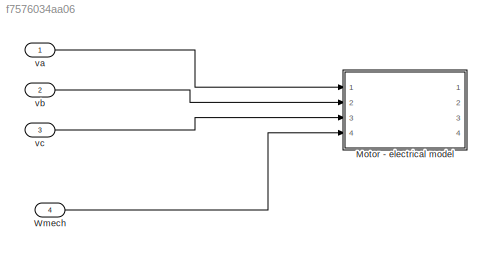
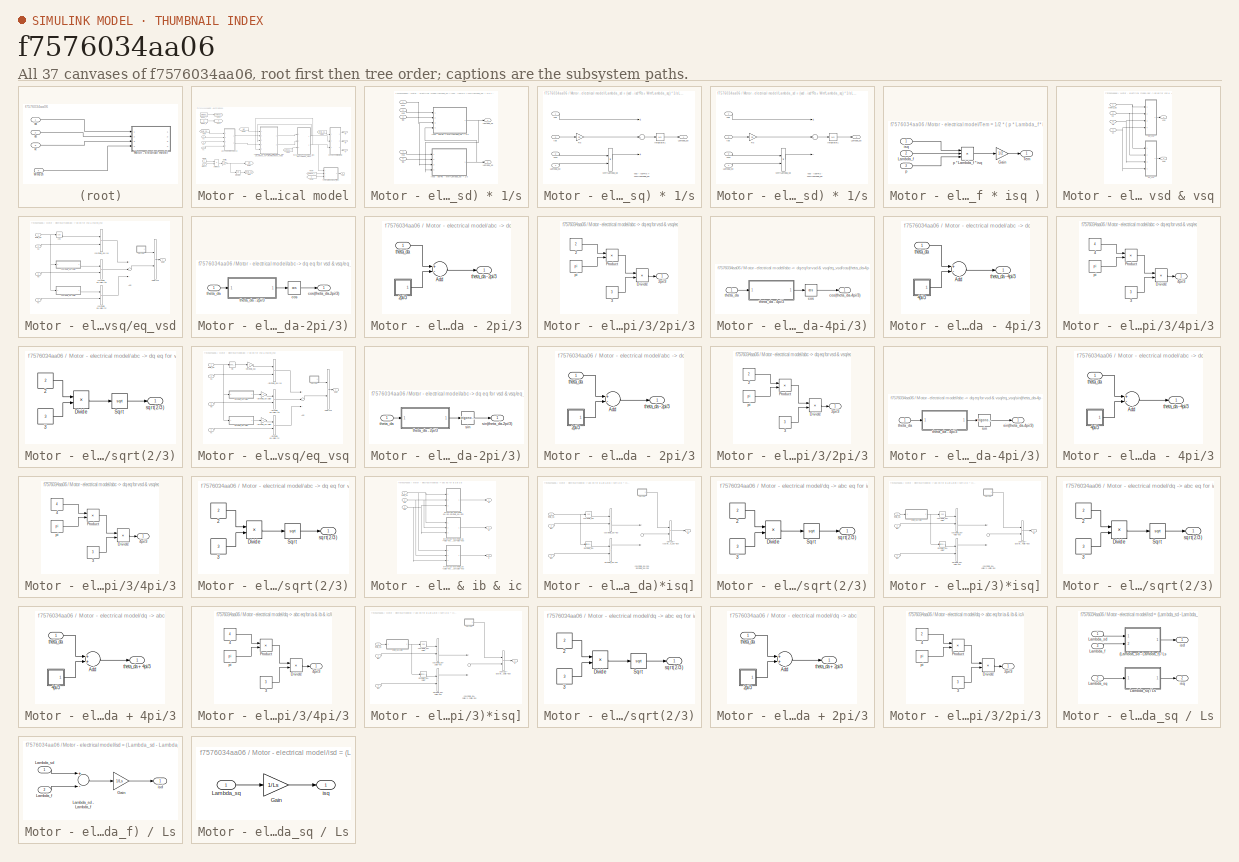
[diagram: thumbnail index - all 37 canvases of the model, root first then tree order]
MODEL slx_f7576034aa06
KIND model
CONFIG AbsTol = auto
CONFIG FixedStep = auto
CONFIG MaxStep = auto
CONFIG MinStep = auto
CONFIG RelTol = 1e-3
CONFIG SampleTimeConstraint = Unconstrained
CONFIG Solver = VariableStepAuto
CONFIG SolverMode = Auto
CONFIG SolverName = VariableStepAuto
CONFIG StartTime = 0.0
CONFIG StopTime = 10.0
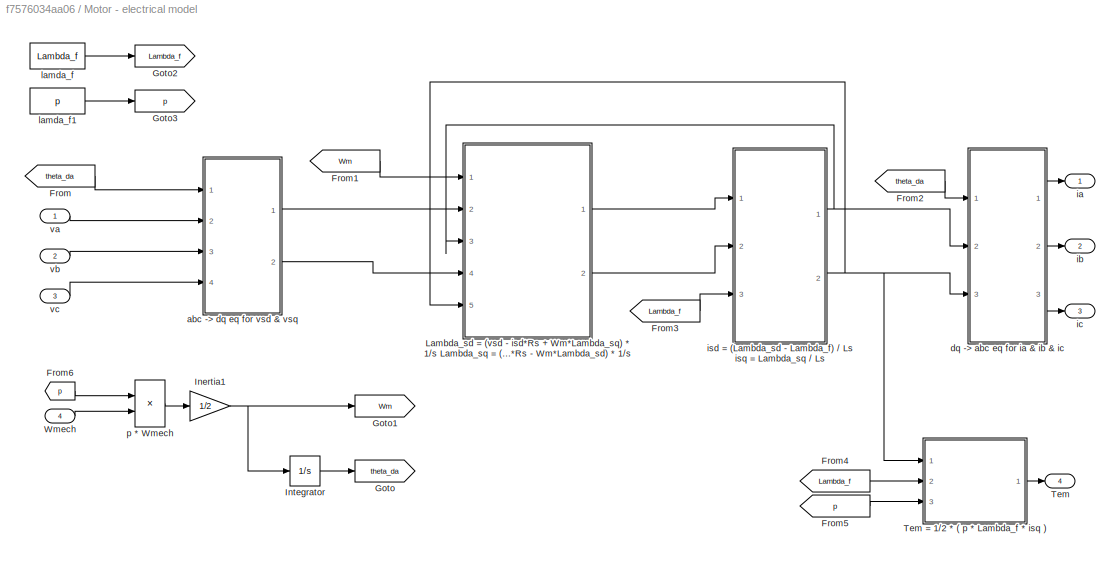
BLOCK [SubSystem] Motor - electrical model
  Ports = [4, 4]
  RequestExecContextInheritance = off
  Variant = off
BLOCK [From] Motor - electrical model/From
  CloseFcn = tagdialog Close
  GotoTag = theta_da
BLOCK [From] Motor - electrical model/From1
  CloseFcn = tagdialog Close
  GotoTag = Wm
BLOCK [From] Motor - electrical model/From2
  CloseFcn = tagdialog Close
  GotoTag = theta_da
BLOCK [From] Motor - electrical model/From3
  CloseFcn = tagdialog Close
  GotoTag = Lambda_f
BLOCK [From] Motor - electrical model/From4
  CloseFcn = tagdialog Close
  GotoTag = Lambda_f
BLOCK [From] Motor - electrical model/From5
  CloseFcn = tagdialog Close
  GotoTag = p
BLOCK [From] Motor - electrical model/From6
  CloseFcn = tagdialog Close
  GotoTag = p
BLOCK [Goto] Motor - electrical model/Goto
  GotoTag = theta_da
BLOCK [Goto] Motor - electrical model/Goto1
  GotoTag = Wm
BLOCK [Goto] Motor - electrical model/Goto2
  GotoTag = Lambda_f
BLOCK [Goto] Motor - electrical model/Goto3
  GotoTag = p
BLOCK [Gain] Motor - electrical model/Inertia1
  Gain = 1/2
BLOCK [Integrator] Motor - electrical model/Integrator
  InitialCondition = -pi/2
  Ports = [1, 1]
BLOCK [SubSystem] Motor - electrical model/Lambda_sd = (vsd - isd*Rs + Wm*Lambda_sq) * 1//s Lambda_sq = (vsd - isq*Rs - Wm*Lambda_sd) * 1//s
  Ports = [5, 2]
  RequestExecContextInheritance = off
  Variant = off
BLOCK [SubSystem] Motor - electrical model/Lambda_sd = (vsd - isd*Rs + Wm*Lambda_sq) * 1//s Lambda_sq = (vsd - isq*Rs - Wm*Lambda_sd) * 1//s/(vsd - isd*Rs + Wm*Lambda_sq) * 1//s
  Ports = [4, 1]
  RequestExecContextInheritance = off
  Variant = off
BLOCK [Integrator] Motor - electrical model/Lambda_sd = (vsd - isd*Rs + Wm*Lambda_sq) * 1//s Lambda_sq = (vsd - isq*Rs - Wm*Lambda_sd) * 1//s/(vsd - isd*Rs + Wm*Lambda_sq) * 1//s/Integrator1
  InitialCondition = [Lambda_sd_0; Lambda_sq_0]
  Ports = [1, 1]
BLOCK [Outport] Motor - electrical model/Lambda_sd = (vsd - isd*Rs + Wm*Lambda_sq) * 1//s Lambda_sq = (vsd - isq*Rs - Wm*Lambda_sd) * 1//s/(vsd - isd*Rs + Wm*Lambda_sq) * 1//s/Lambda_sd
  IconDisplay = Port number
BLOCK [Inport] Motor - electrical model/Lambda_sd = (vsd - isd*Rs + Wm*Lambda_sq) * 1//s Lambda_sq = (vsd - isq*Rs - Wm*Lambda_sd) * 1//s/(vsd - isd*Rs + Wm*Lambda_sq) * 1//s/Lambda_sq
  IconDisplay = Port number
  Port = 4
BLOCK [Gain] Motor - electrical model/Lambda_sd = (vsd - isd*Rs + Wm*Lambda_sq) * 1//s Lambda_sq = (vsd - isq*Rs - Wm*Lambda_sd) * 1//s/(vsd - isd*Rs + Wm*Lambda_sq) * 1//s/Rs
  Gain = Rs
  OutDataTypeStr = Inherit: Inherit via internal rule
  ParamDataTypeStr = Inherit: Inherit via internal rule
  SaturateOnIntegerOverflow = off
BLOCK [Inport] Motor - electrical model/Lambda_sd = (vsd - isd*Rs + Wm*Lambda_sq) * 1//s Lambda_sq = (vsd - isq*Rs - Wm*Lambda_sd) * 1//s/(vsd - isd*Rs + Wm*Lambda_sq) * 1//s/Wm
  IconDisplay = Port number
  Port = 3
BLOCK [Product] Motor - electrical model/Lambda_sd = (vsd - isd*Rs + Wm*Lambda_sq) * 1//s Lambda_sq = (vsd - isq*Rs - Wm*Lambda_sd) * 1//s/(vsd - isd*Rs + Wm*Lambda_sq) * 1//s/Wm*Lambda_sq
  InputSameDT = off
  OutDataTypeStr = Inherit: Inherit via internal rule
  Ports = [2, 1]
  RndMeth = Floor
  SaturateOnIntegerOverflow = off
BLOCK [Inport] Motor - electrical model/Lambda_sd = (vsd - isd*Rs + Wm*Lambda_sq) * 1//s Lambda_sq = (vsd - isq*Rs - Wm*Lambda_sd) * 1//s/(vsd - isd*Rs + Wm*Lambda_sq) * 1//s/isd
  IconDisplay = Port number
  Port = 2
BLOCK [Inport] Motor - electrical model/Lambda_sd = (vsd - isd*Rs + Wm*Lambda_sq) * 1//s Lambda_sq = (vsd - isq*Rs - Wm*Lambda_sd) * 1//s/(vsd - isd*Rs + Wm*Lambda_sq) * 1//s/vsd
  IconDisplay = Port number
BLOCK [Sum] Motor - electrical model/Lambda_sd = (vsd - isd*Rs + Wm*Lambda_sq) * 1//s Lambda_sq = (vsd - isq*Rs - Wm*Lambda_sd) * 1//s/(vsd - isd*Rs + Wm*Lambda_sq) * 1//s/vsd - isd*Rs + Wm*Lambda_sq
  InputSameDT = off
  Inputs = +-+
  OutDataTypeStr = Inherit: Inherit via internal rule
  Ports = [3, 1]
  SaturateOnIntegerOverflow = off
BLOCK [SubSystem] Motor - electrical model/Lambda_sd = (vsd - isd*Rs + Wm*Lambda_sq) * 1//s Lambda_sq = (vsd - isq*Rs - Wm*Lambda_sd) * 1//s/(vsd - isq*Rs - Wm*Lambda_sd) * 1//s
  Ports = [4, 1]
  RequestExecContextInheritance = off
  Variant = off
BLOCK [Integrator] Motor - electrical model/Lambda_sd = (vsd - isd*Rs + Wm*Lambda_sq) * 1//s Lambda_sq = (vsd - isq*Rs - Wm*Lambda_sd) * 1//s/(vsd - isq*Rs - Wm*Lambda_sd) * 1//s/Integrator1
  InitialCondition = [Lambda_sd_0; Lambda_sq_0]
  Ports = [1, 1]
BLOCK [Inport] Motor - electrical model/Lambda_sd = (vsd - isd*Rs + Wm*Lambda_sq) * 1//s Lambda_sq = (vsd - isq*Rs - Wm*Lambda_sd) * 1//s/(vsd - isq*Rs - Wm*Lambda_sd) * 1//s/Lambda_sd
  IconDisplay = Port number
  Port = 4
BLOCK [Outport] Motor - electrical model/Lambda_sd = (vsd - isd*Rs + Wm*Lambda_sq) * 1//s Lambda_sq = (vsd - isq*Rs - Wm*Lambda_sd) * 1//s/(vsd - isq*Rs - Wm*Lambda_sd) * 1//s/Lambda_sq
  IconDisplay = Port number
BLOCK [Gain] Motor - electrical model/Lambda_sd = (vsd - isd*Rs + Wm*Lambda_sq) * 1//s Lambda_sq = (vsd - isq*Rs - Wm*Lambda_sd) * 1//s/(vsd - isq*Rs - Wm*Lambda_sd) * 1//s/Rs
  Gain = Rs
  OutDataTypeStr = Inherit: Inherit via internal rule
  ParamDataTypeStr = Inherit: Inherit via internal rule
  SaturateOnIntegerOverflow = off
BLOCK [Inport] Motor - electrical model/Lambda_sd = (vsd - isd*Rs + Wm*Lambda_sq) * 1//s Lambda_sq = (vsd - isq*Rs - Wm*Lambda_sd) * 1//s/(vsd - isq*Rs - Wm*Lambda_sd) * 1//s/Wm
  IconDisplay = Port number
  Port = 3
BLOCK [Product] Motor - electrical model/Lambda_sd = (vsd - isd*Rs + Wm*Lambda_sq) * 1//s Lambda_sq = (vsd - isq*Rs - Wm*Lambda_sd) * 1//s/(vsd - isq*Rs - Wm*Lambda_sd) * 1//s/Wm*Lambda_sd
  InputSameDT = off
  OutDataTypeStr = Inherit: Inherit via internal rule
  Ports = [2, 1]
  RndMeth = Floor
  SaturateOnIntegerOverflow = off
BLOCK [Inport] Motor - electrical model/Lambda_sd = (vsd - isd*Rs + Wm*Lambda_sq) * 1//s Lambda_sq = (vsd - isq*Rs - Wm*Lambda_sd) * 1//s/(vsd - isq*Rs - Wm*Lambda_sd) * 1//s/isq
  IconDisplay = Port number
  Port = 2
BLOCK [Sum] Motor - electrical model/Lambda_sd = (vsd - isd*Rs + Wm*Lambda_sq) * 1//s Lambda_sq = (vsd - isq*Rs - Wm*Lambda_sd) * 1//s/(vsd - isq*Rs - Wm*Lambda_sd) * 1//s/vsd - isq*Rs - Wm*Lambda_sd
  InputSameDT = off
  Inputs = +--
  OutDataTypeStr = Inherit: Inherit via internal rule
  Ports = [3, 1]
  SaturateOnIntegerOverflow = off
BLOCK [Inport] Motor - electrical model/Lambda_sd = (vsd - isd*Rs + Wm*Lambda_sq) * 1//s Lambda_sq = (vsd - isq*Rs - Wm*Lambda_sd) * 1//s/(vsd - isq*Rs - Wm*Lambda_sd) * 1//s/vsq
  IconDisplay = Port number
BLOCK [Outport] Motor - electrical model/Lambda_sd = (vsd - isd*Rs + Wm*Lambda_sq) * 1//s Lambda_sq = (vsd - isq*Rs - Wm*Lambda_sd) * 1//s/Lambda_sd
  IconDisplay = Port number
BLOCK [Outport] Motor - electrical model/Lambda_sd = (vsd - isd*Rs + Wm*Lambda_sq) * 1//s Lambda_sq = (vsd - isq*Rs - Wm*Lambda_sd) * 1//s/Lambda_sq
  IconDisplay = Port number
  Port = 2
BLOCK [Inport] Motor - electrical model/Lambda_sd = (vsd - isd*Rs + Wm*Lambda_sq) * 1//s Lambda_sq = (vsd - isq*Rs - Wm*Lambda_sd) * 1//s/Wm
  IconDisplay = Port number
BLOCK [Inport] Motor - electrical model/Lambda_sd = (vsd - isd*Rs + Wm*Lambda_sq) * 1//s Lambda_sq = (vsd - isq*Rs - Wm*Lambda_sd) * 1//s/isd
  IconDisplay = Port number
  Port = 3
BLOCK [Inport] Motor - electrical model/Lambda_sd = (vsd - isd*Rs + Wm*Lambda_sq) * 1//s Lambda_sq = (vsd - isq*Rs - Wm*Lambda_sd) * 1//s/isq
  IconDisplay = Port number
  Port = 5
BLOCK [Inport] Motor - electrical model/Lambda_sd = (vsd - isd*Rs + Wm*Lambda_sq) * 1//s Lambda_sq = (vsd - isq*Rs - Wm*Lambda_sd) * 1//s/vsd
  IconDisplay = Port number
  Port = 2
BLOCK [Inport] Motor - electrical model/Lambda_sd = (vsd - isd*Rs + Wm*Lambda_sq) * 1//s Lambda_sq = (vsd - isq*Rs - Wm*Lambda_sd) * 1//s/vsq
  IconDisplay = Port number
  Port = 4
BLOCK [Outport] Motor - electrical model/Tem
  IconDisplay = Port number
  Port = 4
BLOCK [SubSystem] Motor - electrical model/Tem = 1//2 * ( p * Lambda_f * isq )
  Ports = [3, 1]
  RequestExecContextInheritance = off
  Variant = off
BLOCK [Gain] Motor - electrical model/Tem = 1//2 * ( p * Lambda_f * isq )/Gain
  Gain = 1/2
  OutDataTypeStr = Inherit: Inherit via internal rule
  ParamDataTypeStr = Inherit: Inherit via internal rule
  SaturateOnIntegerOverflow = off
BLOCK [Inport] Motor - electrical model/Tem = 1//2 * ( p * Lambda_f * isq )/Lambda_f
  IconDisplay = Port number
  Port = 2
BLOCK [Outport] Motor - electrical model/Tem = 1//2 * ( p * Lambda_f * isq )/Tem
  IconDisplay = Port number
BLOCK [Inport] Motor - electrical model/Tem = 1//2 * ( p * Lambda_f * isq )/isq
  IconDisplay = Port number
BLOCK [Inport] Motor - electrical model/Tem = 1//2 * ( p * Lambda_f * isq )/p
  IconDisplay = Port number
  Port = 3
BLOCK [Product] Motor - electrical model/Tem = 1//2 * ( p * Lambda_f * isq )/p * Lambda_f * isq
  InputSameDT = off
  Inputs = 3
  OutDataTypeStr = Inherit: Inherit via internal rule
  Ports = [3, 1]
  RndMeth = Floor
  SaturateOnIntegerOverflow = off
BLOCK [Inport] Motor - electrical model/Wmech
  IconDisplay = Port number
  Port = 4
BLOCK [SubSystem] Motor - electrical model/abc -> dq eq for vsd & vsq
  Ports = [4, 2]
  RequestExecContextInheritance = off
  Variant = off
BLOCK [SubSystem] Motor - electrical model/abc -> dq eq for vsd & vsq/eq_vsd
  Ports = [4, 1]
  RequestExecContextInheritance = off
  Variant = off
BLOCK [Sum] Motor - electrical model/abc -> dq eq for vsd & vsq/eq_vsd/Add
  InputSameDT = off
  Inputs = +++
  OutDataTypeStr = Inherit: Inherit via internal rule
  Ports = [3, 1]
  SaturateOnIntegerOverflow = off
BLOCK [Trigonometry] Motor - electrical model/abc -> dq eq for vsd & vsq/eq_vsd/cos
  Operator = cos
  Ports = [1, 1]
BLOCK [Product] Motor - electrical model/abc -> dq eq for vsd & vsq/eq_vsd/cos(theta_da)*va
  InputSameDT = off
  OutDataTypeStr = Inherit: Inherit via internal rule
  Ports = [2, 1]
  RndMeth = Floor
  SaturateOnIntegerOverflow = off
BLOCK [SubSystem] Motor - electrical model/abc -> dq eq for vsd & vsq/eq_vsd/cos(theta_da-2pi//3)
  Ports = [1, 1]
  RequestExecContextInheritance = off
  Variant = off
BLOCK [Product] Motor - electrical model/abc -> dq eq for vsd & vsq/eq_vsd/cos(theta_da-2pi//3)*vb
  InputSameDT = off
  OutDataTypeStr = Inherit: Inherit via internal rule
  Ports = [2, 1]
  RndMeth = Floor
  SaturateOnIntegerOverflow = off
BLOCK [Trigonometry] Motor - electrical model/abc -> dq eq for vsd & vsq/eq_vsd/cos(theta_da-2pi//3)/cos
  Operator = cos
  Ports = [1, 1]
BLOCK [Outport] Motor - electrical model/abc -> dq eq for vsd & vsq/eq_vsd/cos(theta_da-2pi//3)/cos(theta_da-2pi//3)
  IconDisplay = Port number
BLOCK [Inport] Motor - electrical model/abc -> dq eq for vsd & vsq/eq_vsd/cos(theta_da-2pi//3)/theta_da
  IconDisplay = Port number
BLOCK [SubSystem] Motor - electrical model/abc -> dq eq for vsd & vsq/eq_vsd/cos(theta_da-2pi//3)/theta_da - 2pi//3
  Ports = [1, 1]
  RequestExecContextInheritance = off
  Variant = off
BLOCK [SubSystem] Motor - electrical model/abc -> dq eq for vsd & vsq/eq_vsd/cos(theta_da-2pi//3)/theta_da - 2pi//3/2pi//3
  Ports = [0, 1]
  RequestExecContextInheritance = off
  Variant = off
BLOCK [Constant] Motor - electrical model/abc -> dq eq for vsd & vsq/eq_vsd/cos(theta_da-2pi//3)/theta_da - 2pi//3/2pi//3/2
  Value = 2
BLOCK [Outport] Motor - electrical model/abc -> dq eq for vsd & vsq/eq_vsd/cos(theta_da-2pi//3)/theta_da - 2pi//3/2pi//3/2pi//3
  IconDisplay = Port number
BLOCK [Constant] Motor - electrical model/abc -> dq eq for vsd & vsq/eq_vsd/cos(theta_da-2pi//3)/theta_da - 2pi//3/2pi//3/3
  Value = 3
BLOCK [Product] Motor - electrical model/abc -> dq eq for vsd & vsq/eq_vsd/cos(theta_da-2pi//3)/theta_da - 2pi//3/2pi//3/Divide
  InputSameDT = off
  Inputs = */
  OutDataTypeStr = Inherit: Inherit via internal rule
  Ports = [2, 1]
  RndMeth = Floor
  SaturateOnIntegerOverflow = off
BLOCK [Product] Motor - electrical model/abc -> dq eq for vsd & vsq/eq_vsd/cos(theta_da-2pi//3)/theta_da - 2pi//3/2pi//3/Product
  InputSameDT = off
  OutDataTypeStr = Inherit: Inherit via internal rule
  Ports = [2, 1]
  RndMeth = Floor
  SaturateOnIntegerOverflow = off
BLOCK [Constant] Motor - electrical model/abc -> dq eq for vsd & vsq/eq_vsd/cos(theta_da-2pi//3)/theta_da - 2pi//3/2pi//3/pi
  Value = pi
BLOCK [Sum] Motor - electrical model/abc -> dq eq for vsd & vsq/eq_vsd/cos(theta_da-2pi//3)/theta_da - 2pi//3/Add
  InputSameDT = off
  Inputs = +-
  OutDataTypeStr = Inherit: Inherit via internal rule
  Ports = [2, 1]
  SaturateOnIntegerOverflow = off
BLOCK [Inport] Motor - electrical model/abc -> dq eq for vsd & vsq/eq_vsd/cos(theta_da-2pi//3)/theta_da - 2pi//3/theta_da
  IconDisplay = Port number
BLOCK [Outport] Motor - electrical model/abc -> dq eq for vsd & vsq/eq_vsd/cos(theta_da-2pi//3)/theta_da - 2pi//3/theta_da - 2pi//3
  IconDisplay = Port number
BLOCK [SubSystem] Motor - electrical model/abc -> dq eq for vsd & vsq/eq_vsd/cos(theta_da-4pi//3)
  Ports = [1, 1]
  RequestExecContextInheritance = off
  Variant = off
BLOCK [Product] Motor - electrical model/abc -> dq eq for vsd & vsq/eq_vsd/cos(theta_da-4pi//3)*vc
  InputSameDT = off
  OutDataTypeStr = Inherit: Inherit via internal rule
  Ports = [2, 1]
  RndMeth = Floor
  SaturateOnIntegerOverflow = off
BLOCK [Trigonometry] Motor - electrical model/abc -> dq eq for vsd & vsq/eq_vsd/cos(theta_da-4pi//3)/cos
  Operator = cos
  Ports = [1, 1]
BLOCK [Outport] Motor - electrical model/abc -> dq eq for vsd & vsq/eq_vsd/cos(theta_da-4pi//3)/cos(theta_da-4pi//3)
  IconDisplay = Port number
BLOCK [Inport] Motor - electrical model/abc -> dq eq for vsd & vsq/eq_vsd/cos(theta_da-4pi//3)/theta_da
  IconDisplay = Port number
BLOCK [SubSystem] Motor - electrical model/abc -> dq eq for vsd & vsq/eq_vsd/cos(theta_da-4pi//3)/theta_da - 4pi//3
  Ports = [1, 1]
  RequestExecContextInheritance = off
  Variant = off
BLOCK [SubSystem] Motor - electrical model/abc -> dq eq for vsd & vsq/eq_vsd/cos(theta_da-4pi//3)/theta_da - 4pi//3/4pi//3
  Ports = [0, 1]
  RequestExecContextInheritance = off
  Variant = off
BLOCK [Constant] Motor - electrical model/abc -> dq eq for vsd & vsq/eq_vsd/cos(theta_da-4pi//3)/theta_da - 4pi//3/4pi//3/3
  Value = 3
BLOCK [Constant] Motor - electrical model/abc -> dq eq for vsd & vsq/eq_vsd/cos(theta_da-4pi//3)/theta_da - 4pi//3/4pi//3/4
  Value = 4
BLOCK [Outport] Motor - electrical model/abc -> dq eq for vsd & vsq/eq_vsd/cos(theta_da-4pi//3)/theta_da - 4pi//3/4pi//3/4pi//3
  IconDisplay = Port number
BLOCK [Product] Motor - electrical model/abc -> dq eq for vsd & vsq/eq_vsd/cos(theta_da-4pi//3)/theta_da - 4pi//3/4pi//3/Divide
  InputSameDT = off
  Inputs = */
  OutDataTypeStr = Inherit: Inherit via internal rule
  Ports = [2, 1]
  RndMeth = Floor
  SaturateOnIntegerOverflow = off
BLOCK [Product] Motor - electrical model/abc -> dq eq for vsd & vsq/eq_vsd/cos(theta_da-4pi//3)/theta_da - 4pi//3/4pi//3/Product
  InputSameDT = off
  OutDataTypeStr = Inherit: Inherit via internal rule
  Ports = [2, 1]
  RndMeth = Floor
  SaturateOnIntegerOverflow = off
BLOCK [Constant] Motor - electrical model/abc -> dq eq for vsd & vsq/eq_vsd/cos(theta_da-4pi//3)/theta_da - 4pi//3/4pi//3/pi
  Value = pi
BLOCK [Sum] Motor - electrical model/abc -> dq eq for vsd & vsq/eq_vsd/cos(theta_da-4pi//3)/theta_da - 4pi//3/Add
  InputSameDT = off
  Inputs = +-
  OutDataTypeStr = Inherit: Inherit via internal rule
  Ports = [2, 1]
  SaturateOnIntegerOverflow = off
BLOCK [Inport] Motor - electrical model/abc -> dq eq for vsd & vsq/eq_vsd/cos(theta_da-4pi//3)/theta_da - 4pi//3/theta_da
  IconDisplay = Port number
BLOCK [Outport] Motor - electrical model/abc -> dq eq for vsd & vsq/eq_vsd/cos(theta_da-4pi//3)/theta_da - 4pi//3/theta_da - 4pi//3
  IconDisplay = Port number
BLOCK [Product] Motor - electrical model/abc -> dq eq for vsd & vsq/eq_vsd/eq for vsd
  InputSameDT = off
  OutDataTypeStr = Inherit: Inherit via internal rule
  Ports = [2, 1]
  RndMeth = Floor
  SaturateOnIntegerOverflow = off
BLOCK [SubSystem] Motor - electrical model/abc -> dq eq for vsd & vsq/eq_vsd/sqrt(2//3)
  Ports = [0, 1]
  RequestExecContextInheritance = off
  Variant = off
BLOCK [Constant] Motor - electrical model/abc -> dq eq for vsd & vsq/eq_vsd/sqrt(2//3)/2
  Value = 2
BLOCK [Constant] Motor - electrical model/abc -> dq eq for vsd & vsq/eq_vsd/sqrt(2//3)/3
  Value = 3
BLOCK [Product] Motor - electrical model/abc -> dq eq for vsd & vsq/eq_vsd/sqrt(2//3)/Divide
  InputSameDT = off
  Inputs = */
  OutDataTypeStr = Inherit: Inherit via internal rule
  Ports = [2, 1]
  RndMeth = Floor
  SaturateOnIntegerOverflow = off
BLOCK [Sqrt] Motor - electrical model/abc -> dq eq for vsd & vsq/eq_vsd/sqrt(2//3)/Sqrt
BLOCK [Outport] Motor - electrical model/abc -> dq eq for vsd & vsq/eq_vsd/sqrt(2//3)/sqrt(2//3)
  IconDisplay = Port number
BLOCK [Inport] Motor - electrical model/abc -> dq eq for vsd & vsq/eq_vsd/theta_da
  IconDisplay = Port number
BLOCK [Inport] Motor - electrical model/abc -> dq eq for vsd & vsq/eq_vsd/va
  IconDisplay = Port number
  Port = 2
BLOCK [Inport] Motor - electrical model/abc -> dq eq for vsd & vsq/eq_vsd/vb
  IconDisplay = Port number
  Port = 3
BLOCK [Inport] Motor - electrical model/abc -> dq eq for vsd & vsq/eq_vsd/vc
  IconDisplay = Port number
  Port = 4
BLOCK [Outport] Motor - electrical model/abc -> dq eq for vsd & vsq/eq_vsd/vsd
  IconDisplay = Port number
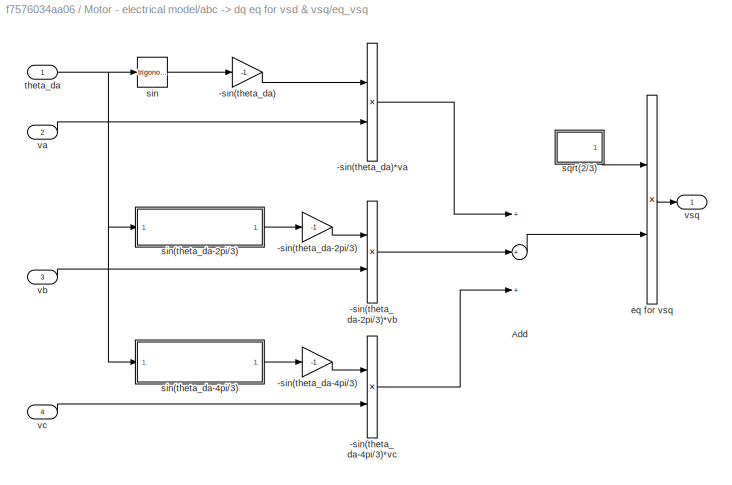
BLOCK [SubSystem] Motor - electrical model/abc -> dq eq for vsd & vsq/eq_vsq
  Ports = [4, 1]
  RequestExecContextInheritance = off
  Variant = off
BLOCK [Gain] Motor - electrical model/abc -> dq eq for vsd & vsq/eq_vsq/-sin(theta_da)
  Gain = -1
  OutDataTypeStr = Inherit: Inherit via internal rule
  ParamDataTypeStr = Inherit: Inherit via internal rule
  SaturateOnIntegerOverflow = off
BLOCK [Product] Motor - electrical model/abc -> dq eq for vsd & vsq/eq_vsq/-sin(theta_da)*va
  InputSameDT = off
  OutDataTypeStr = Inherit: Inherit via internal rule
  Ports = [2, 1]
  RndMeth = Floor
  SaturateOnIntegerOverflow = off
BLOCK [Gain] Motor - electrical model/abc -> dq eq for vsd & vsq/eq_vsq/-sin(theta_da-2pi//3)
  Gain = -1
  OutDataTypeStr = Inherit: Inherit via internal rule
  ParamDataTypeStr = Inherit: Inherit via internal rule
  SaturateOnIntegerOverflow = off
BLOCK [Product] Motor - electrical model/abc -> dq eq for vsd & vsq/eq_vsq/-sin(theta_da-2pi//3)*vb
  InputSameDT = off
  OutDataTypeStr = Inherit: Inherit via internal rule
  Ports = [2, 1]
  RndMeth = Floor
  SaturateOnIntegerOverflow = off
BLOCK [Gain] Motor - electrical model/abc -> dq eq for vsd & vsq/eq_vsq/-sin(theta_da-4pi//3)
  Gain = -1
  OutDataTypeStr = Inherit: Inherit via internal rule
  ParamDataTypeStr = Inherit: Inherit via internal rule
  SaturateOnIntegerOverflow = off
BLOCK [Product] Motor - electrical model/abc -> dq eq for vsd & vsq/eq_vsq/-sin(theta_da-4pi//3)*vc
  InputSameDT = off
  OutDataTypeStr = Inherit: Inherit via internal rule
  Ports = [2, 1]
  RndMeth = Floor
  SaturateOnIntegerOverflow = off
BLOCK [Sum] Motor - electrical model/abc -> dq eq for vsd & vsq/eq_vsq/Add
  InputSameDT = off
  Inputs = +++
  OutDataTypeStr = Inherit: Inherit via internal rule
  Ports = [3, 1]
  SaturateOnIntegerOverflow = off
BLOCK [Product] Motor - electrical model/abc -> dq eq for vsd & vsq/eq_vsq/eq for vsq
  InputSameDT = off
  OutDataTypeStr = Inherit: Inherit via internal rule
  Ports = [2, 1]
  RndMeth = Floor
  SaturateOnIntegerOverflow = off
BLOCK [Trigonometry] Motor - electrical model/abc -> dq eq for vsd & vsq/eq_vsq/sin
  Ports = [1, 1]
BLOCK [SubSystem] Motor - electrical model/abc -> dq eq for vsd & vsq/eq_vsq/sin(theta_da-2pi//3)
  Ports = [1, 1]
  RequestExecContextInheritance = off
  Variant = off
BLOCK [Trigonometry] Motor - electrical model/abc -> dq eq for vsd & vsq/eq_vsq/sin(theta_da-2pi//3)/sin
  Ports = [1, 1]
BLOCK [Outport] Motor - electrical model/abc -> dq eq for vsd & vsq/eq_vsq/sin(theta_da-2pi//3)/sin(theta_da-2pi//3)
  IconDisplay = Port number
BLOCK [Inport] Motor - electrical model/abc -> dq eq for vsd & vsq/eq_vsq/sin(theta_da-2pi//3)/theta_da
  IconDisplay = Port number
BLOCK [SubSystem] Motor - electrical model/abc -> dq eq for vsd & vsq/eq_vsq/sin(theta_da-2pi//3)/theta_da - 2pi//3
  Ports = [1, 1]
  RequestExecContextInheritance = off
  Variant = off
BLOCK [SubSystem] Motor - electrical model/abc -> dq eq for vsd & vsq/eq_vsq/sin(theta_da-2pi//3)/theta_da - 2pi//3/2pi//3
  Ports = [0, 1]
  RequestExecContextInheritance = off
  Variant = off
BLOCK [Constant] Motor - electrical model/abc -> dq eq for vsd & vsq/eq_vsq/sin(theta_da-2pi//3)/theta_da - 2pi//3/2pi//3/2
  Value = 2
BLOCK [Outport] Motor - electrical model/abc -> dq eq for vsd & vsq/eq_vsq/sin(theta_da-2pi//3)/theta_da - 2pi//3/2pi//3/2pi//3
  IconDisplay = Port number
BLOCK [Constant] Motor - electrical model/abc -> dq eq for vsd & vsq/eq_vsq/sin(theta_da-2pi//3)/theta_da - 2pi//3/2pi//3/3
  Value = 3
BLOCK [Product] Motor - electrical model/abc -> dq eq for vsd & vsq/eq_vsq/sin(theta_da-2pi//3)/theta_da - 2pi//3/2pi//3/Divide
  InputSameDT = off
  Inputs = */
  OutDataTypeStr = Inherit: Inherit via internal rule
  Ports = [2, 1]
  RndMeth = Floor
  SaturateOnIntegerOverflow = off
BLOCK [Product] Motor - electrical model/abc -> dq eq for vsd & vsq/eq_vsq/sin(theta_da-2pi//3)/theta_da - 2pi//3/2pi//3/Product
  InputSameDT = off
  OutDataTypeStr = Inherit: Inherit via internal rule
  Ports = [2, 1]
  RndMeth = Floor
  SaturateOnIntegerOverflow = off
BLOCK [Constant] Motor - electrical model/abc -> dq eq for vsd & vsq/eq_vsq/sin(theta_da-2pi//3)/theta_da - 2pi//3/2pi//3/pi
  Value = pi
BLOCK [Sum] Motor - electrical model/abc -> dq eq for vsd & vsq/eq_vsq/sin(theta_da-2pi//3)/theta_da - 2pi//3/Add
  InputSameDT = off
  Inputs = +-
  OutDataTypeStr = Inherit: Inherit via internal rule
  Ports = [2, 1]
  SaturateOnIntegerOverflow = off
BLOCK [Inport] Motor - electrical model/abc -> dq eq for vsd & vsq/eq_vsq/sin(theta_da-2pi//3)/theta_da - 2pi//3/theta_da
  IconDisplay = Port number
BLOCK [Outport] Motor - electrical model/abc -> dq eq for vsd & vsq/eq_vsq/sin(theta_da-2pi//3)/theta_da - 2pi//3/theta_da - 2pi//3
  IconDisplay = Port number
BLOCK [SubSystem] Motor - electrical model/abc -> dq eq for vsd & vsq/eq_vsq/sin(theta_da-4pi//3)
  Ports = [1, 1]
  RequestExecContextInheritance = off
  Variant = off
BLOCK [Trigonometry] Motor - electrical model/abc -> dq eq for vsd & vsq/eq_vsq/sin(theta_da-4pi//3)/sin
  Ports = [1, 1]
BLOCK [Outport] Motor - electrical model/abc -> dq eq for vsd & vsq/eq_vsq/sin(theta_da-4pi//3)/sin(theta_da-4pi//3)
  IconDisplay = Port number
BLOCK [Inport] Motor - electrical model/abc -> dq eq for vsd & vsq/eq_vsq/sin(theta_da-4pi//3)/theta_da
  IconDisplay = Port number
BLOCK [SubSystem] Motor - electrical model/abc -> dq eq for vsd & vsq/eq_vsq/sin(theta_da-4pi//3)/theta_da - 4pi//3
  Ports = [1, 1]
  RequestExecContextInheritance = off
  Variant = off
BLOCK [SubSystem] Motor - electrical model/abc -> dq eq for vsd & vsq/eq_vsq/sin(theta_da-4pi//3)/theta_da - 4pi//3/4pi//3
  Ports = [0, 1]
  RequestExecContextInheritance = off
  Variant = off
BLOCK [Constant] Motor - electrical model/abc -> dq eq for vsd & vsq/eq_vsq/sin(theta_da-4pi//3)/theta_da - 4pi//3/4pi//3/3
  Value = 3
BLOCK [Constant] Motor - electrical model/abc -> dq eq for vsd & vsq/eq_vsq/sin(theta_da-4pi//3)/theta_da - 4pi//3/4pi//3/4
  Value = 4
BLOCK [Outport] Motor - electrical model/abc -> dq eq for vsd & vsq/eq_vsq/sin(theta_da-4pi//3)/theta_da - 4pi//3/4pi//3/4pi//3
  IconDisplay = Port number
BLOCK [Product] Motor - electrical model/abc -> dq eq for vsd & vsq/eq_vsq/sin(theta_da-4pi//3)/theta_da - 4pi//3/4pi//3/Divide
  InputSameDT = off
  Inputs = */
  OutDataTypeStr = Inherit: Inherit via internal rule
  Ports = [2, 1]
  RndMeth = Floor
  SaturateOnIntegerOverflow = off
BLOCK [Product] Motor - electrical model/abc -> dq eq for vsd & vsq/eq_vsq/sin(theta_da-4pi//3)/theta_da - 4pi//3/4pi//3/Product
  InputSameDT = off
  OutDataTypeStr = Inherit: Inherit via internal rule
  Ports = [2, 1]
  RndMeth = Floor
  SaturateOnIntegerOverflow = off
BLOCK [Constant] Motor - electrical model/abc -> dq eq for vsd & vsq/eq_vsq/sin(theta_da-4pi//3)/theta_da - 4pi//3/4pi//3/pi
  Value = pi
BLOCK [Sum] Motor - electrical model/abc -> dq eq for vsd & vsq/eq_vsq/sin(theta_da-4pi//3)/theta_da - 4pi//3/Add
  InputSameDT = off
  Inputs = +-
  OutDataTypeStr = Inherit: Inherit via internal rule
  Ports = [2, 1]
  SaturateOnIntegerOverflow = off
BLOCK [Inport] Motor - electrical model/abc -> dq eq for vsd & vsq/eq_vsq/sin(theta_da-4pi//3)/theta_da - 4pi//3/theta_da
  IconDisplay = Port number
BLOCK [Outport] Motor - electrical model/abc -> dq eq for vsd & vsq/eq_vsq/sin(theta_da-4pi//3)/theta_da - 4pi//3/theta_da - 4pi//3
  IconDisplay = Port number
BLOCK [SubSystem] Motor - electrical model/abc -> dq eq for vsd & vsq/eq_vsq/sqrt(2//3)
  Ports = [0, 1]
  RequestExecContextInheritance = off
  Variant = off
BLOCK [Constant] Motor - electrical model/abc -> dq eq for vsd & vsq/eq_vsq/sqrt(2//3)/2
  Value = 2
BLOCK [Constant] Motor - electrical model/abc -> dq eq for vsd & vsq/eq_vsq/sqrt(2//3)/3
  Value = 3
BLOCK [Product] Motor - electrical model/abc -> dq eq for vsd & vsq/eq_vsq/sqrt(2//3)/Divide
  InputSameDT = off
  Inputs = */
  OutDataTypeStr = Inherit: Inherit via internal rule
  Ports = [2, 1]
  RndMeth = Floor
  SaturateOnIntegerOverflow = off
BLOCK [Sqrt] Motor - electrical model/abc -> dq eq for vsd & vsq/eq_vsq/sqrt(2//3)/Sqrt
BLOCK [Outport] Motor - electrical model/abc -> dq eq for vsd & vsq/eq_vsq/sqrt(2//3)/sqrt(2//3)
  IconDisplay = Port number
BLOCK [Inport] Motor - electrical model/abc -> dq eq for vsd & vsq/eq_vsq/theta_da
  IconDisplay = Port number
BLOCK [Inport] Motor - electrical model/abc -> dq eq for vsd & vsq/eq_vsq/va
  IconDisplay = Port number
  Port = 2
BLOCK [Inport] Motor - electrical model/abc -> dq eq for vsd & vsq/eq_vsq/vb
  IconDisplay = Port number
  Port = 3
BLOCK [Inport] Motor - electrical model/abc -> dq eq for vsd & vsq/eq_vsq/vc
  IconDisplay = Port number
  Port = 4
BLOCK [Outport] Motor - electrical model/abc -> dq eq for vsd & vsq/eq_vsq/vsq
  IconDisplay = Port number
BLOCK [Inport] Motor - electrical model/abc -> dq eq for vsd & vsq/theta_da
  IconDisplay = Port number
BLOCK [Inport] Motor - electrical model/abc -> dq eq for vsd & vsq/va
  IconDisplay = Port number
  Port = 2
BLOCK [Inport] Motor - electrical model/abc -> dq eq for vsd & vsq/vb
  IconDisplay = Port number
  Port = 3
BLOCK [Inport] Motor - electrical model/abc -> dq eq for vsd & vsq/vc
  IconDisplay = Port number
  Port = 4
BLOCK [Outport] Motor - electrical model/abc -> dq eq for vsd & vsq/vsd
  IconDisplay = Port number
BLOCK [Outport] Motor - electrical model/abc -> dq eq for vsd & vsq/vsq
  IconDisplay = Port number
  Port = 2
BLOCK [SubSystem] Motor - electrical model/dq -> abc eq for ia & ib & ic
  Ports = [3, 3]
  RequestExecContextInheritance = off
  Variant = off
BLOCK [Outport] Motor - electrical model/dq -> abc eq for ia & ib & ic/ia
  IconDisplay = Port number
BLOCK [SubSystem] Motor - electrical model/dq -> abc eq for ia & ib & ic/ia = sqrt(2//3) * [cos(theta_da)*isd - sin(theta_da)*isq]
  Ports = [3, 1]
  RequestExecContextInheritance = off
  Variant = off
BLOCK [Trigonometry] Motor - electrical model/dq -> abc eq for ia & ib & ic/ia = sqrt(2//3) * [cos(theta_da)*isd - sin(theta_da)*isq]/cos(theta_da)
  Operator = cos
  Ports = [1, 1]
BLOCK [Product] Motor - electrical model/dq -> abc eq for ia & ib & ic/ia = sqrt(2//3) * [cos(theta_da)*isd - sin(theta_da)*isq]/cos(theta_da)*isd
  InputSameDT = off
  OutDataTypeStr = Inherit: Inherit via internal rule
  Ports = [2, 1]
  RndMeth = Floor
  SaturateOnIntegerOverflow = off
BLOCK [Sum] Motor - electrical model/dq -> abc eq for ia & ib & ic/ia = sqrt(2//3) * [cos(theta_da)*isd - sin(theta_da)*isq]/cos(theta_da)*isd - sin(theta_da)*isq
  InputSameDT = off
  Inputs = +-
  OutDataTypeStr = Inherit: Inherit via internal rule
  Ports = [2, 1]
  SaturateOnIntegerOverflow = off
BLOCK [Outport] Motor - electrical model/dq -> abc eq for ia & ib & ic/ia = sqrt(2//3) * [cos(theta_da)*isd - sin(theta_da)*isq]/ia
  IconDisplay = Port number
BLOCK [Inport] Motor - electrical model/dq -> abc eq for ia & ib & ic/ia = sqrt(2//3) * [cos(theta_da)*isd - sin(theta_da)*isq]/isd
  IconDisplay = Port number
  Port = 2
BLOCK [Inport] Motor - electrical model/dq -> abc eq for ia & ib & ic/ia = sqrt(2//3) * [cos(theta_da)*isd - sin(theta_da)*isq]/isq
  IconDisplay = Port number
  Port = 3
BLOCK [Trigonometry] Motor - electrical model/dq -> abc eq for ia & ib & ic/ia = sqrt(2//3) * [cos(theta_da)*isd - sin(theta_da)*isq]/sin(theta_da)
  Ports = [1, 1]
BLOCK [Product] Motor - electrical model/dq -> abc eq for ia & ib & ic/ia = sqrt(2//3) * [cos(theta_da)*isd - sin(theta_da)*isq]/sin(theta_da)*isq
  InputSameDT = off
  OutDataTypeStr = Inherit: Inherit via internal rule
  Ports = [2, 1]
  RndMeth = Floor
  SaturateOnIntegerOverflow = off
BLOCK [SubSystem] Motor - electrical model/dq -> abc eq for ia & ib & ic/ia = sqrt(2//3) * [cos(theta_da)*isd - sin(theta_da)*isq]/sqrt(2//3)
  Ports = [0, 1]
  RequestExecContextInheritance = off
  Variant = off
BLOCK [Product] Motor - electrical model/dq -> abc eq for ia & ib & ic/ia = sqrt(2//3) * [cos(theta_da)*isd - sin(theta_da)*isq]/sqrt(2//3) * (cos(theta_da)*isd - sin(theta_da)*isq)
  InputSameDT = off
  OutDataTypeStr = Inherit: Inherit via internal rule
  Ports = [2, 1]
  RndMeth = Floor
  SaturateOnIntegerOverflow = off
BLOCK [Constant] Motor - electrical model/dq -> abc eq for ia & ib & ic/ia = sqrt(2//3) * [cos(theta_da)*isd - sin(theta_da)*isq]/sqrt(2//3)/2
  Value = 2
BLOCK [Constant] Motor - electrical model/dq -> abc eq for ia & ib & ic/ia = sqrt(2//3) * [cos(theta_da)*isd - sin(theta_da)*isq]/sqrt(2//3)/3
  Value = 3
BLOCK [Product] Motor - electrical model/dq -> abc eq for ia & ib & ic/ia = sqrt(2//3) * [cos(theta_da)*isd - sin(theta_da)*isq]/sqrt(2//3)/Divide
  InputSameDT = off
  Inputs = */
  OutDataTypeStr = Inherit: Inherit via internal rule
  Ports = [2, 1]
  RndMeth = Floor
  SaturateOnIntegerOverflow = off
BLOCK [Sqrt] Motor - electrical model/dq -> abc eq for ia & ib & ic/ia = sqrt(2//3) * [cos(theta_da)*isd - sin(theta_da)*isq]/sqrt(2//3)/Sqrt
BLOCK [Outport] Motor - electrical model/dq -> abc eq for ia & ib & ic/ia = sqrt(2//3) * [cos(theta_da)*isd - sin(theta_da)*isq]/sqrt(2//3)/sqrt(2//3)
  IconDisplay = Port number
BLOCK [Inport] Motor - electrical model/dq -> abc eq for ia & ib & ic/ia = sqrt(2//3) * [cos(theta_da)*isd - sin(theta_da)*isq]/theta_da
  IconDisplay = Port number
BLOCK [Outport] Motor - electrical model/dq -> abc eq for ia & ib & ic/ib
  IconDisplay = Port number
  Port = 2
BLOCK [SubSystem] Motor - electrical model/dq -> abc eq for ia & ib & ic/ib = sqrt(2//3) * [cos(theta_da + 4pi//3)*isd - sin(theta_da + 4pi//3)*isq]
  Ports = [3, 1]
  RequestExecContextInheritance = off
  Variant = off
BLOCK [Trigonometry] Motor - electrical model/dq -> abc eq for ia & ib & ic/ib = sqrt(2//3) * [cos(theta_da + 4pi//3)*isd - sin(theta_da + 4pi//3)*isq]/cos(theta_da + 4pi//3)
  Operator = cos
  Ports = [1, 1]
BLOCK [Product] Motor - electrical model/dq -> abc eq for ia & ib & ic/ib = sqrt(2//3) * [cos(theta_da + 4pi//3)*isd - sin(theta_da + 4pi//3)*isq]/cos(theta_da + 4pi//3)*isd
  InputSameDT = off
  OutDataTypeStr = Inherit: Inherit via internal rule
  Ports = [2, 1]
  RndMeth = Floor
  SaturateOnIntegerOverflow = off
BLOCK [Sum] Motor - electrical model/dq -> abc eq for ia & ib & ic/ib = sqrt(2//3) * [cos(theta_da + 4pi//3)*isd - sin(theta_da + 4pi//3)*isq]/cos(theta_da + 4pi//3)*isd - sin(theta_da + 4pi//3)*isq
  InputSameDT = off
  Inputs = +-
  OutDataTypeStr = Inherit: Inherit via internal rule
  Ports = [2, 1]
  SaturateOnIntegerOverflow = off
BLOCK [Outport] Motor - electrical model/dq -> abc eq for ia & ib & ic/ib = sqrt(2//3) * [cos(theta_da + 4pi//3)*isd - sin(theta_da + 4pi//3)*isq]/ib
  IconDisplay = Port number
BLOCK [Inport] Motor - electrical model/dq -> abc eq for ia & ib & ic/ib = sqrt(2//3) * [cos(theta_da + 4pi//3)*isd - sin(theta_da + 4pi//3)*isq]/isd
  IconDisplay = Port number
  Port = 2
BLOCK [Inport] Motor - electrical model/dq -> abc eq for ia & ib & ic/ib = sqrt(2//3) * [cos(theta_da + 4pi//3)*isd - sin(theta_da + 4pi//3)*isq]/isq
  IconDisplay = Port number
  Port = 3
BLOCK [Trigonometry] Motor - electrical model/dq -> abc eq for ia & ib & ic/ib = sqrt(2//3) * [cos(theta_da + 4pi//3)*isd - sin(theta_da + 4pi//3)*isq]/sin(theta_da + 4pi//3)
  Ports = [1, 1]
BLOCK [Product] Motor - electrical model/dq -> abc eq for ia & ib & ic/ib = sqrt(2//3) * [cos(theta_da + 4pi//3)*isd - sin(theta_da + 4pi//3)*isq]/sin(theta_da + 4pi//3)*isq
  InputSameDT = off
  OutDataTypeStr = Inherit: Inherit via internal rule
  Ports = [2, 1]
  RndMeth = Floor
  SaturateOnIntegerOverflow = off
BLOCK [SubSystem] Motor - electrical model/dq -> abc eq for ia & ib & ic/ib = sqrt(2//3) * [cos(theta_da + 4pi//3)*isd - sin(theta_da + 4pi//3)*isq]/sqrt(2//3)
  Ports = [0, 1]
  RequestExecContextInheritance = off
  Variant = off
BLOCK [Product] Motor - electrical model/dq -> abc eq for ia & ib & ic/ib = sqrt(2//3) * [cos(theta_da + 4pi//3)*isd - sin(theta_da + 4pi//3)*isq]/sqrt(2//3) * [cos(theta_da + 4pi//3)*isd - sin(theta_da + 4pi//3)*isq]
  InputSameDT = off
  OutDataTypeStr = Inherit: Inherit via internal rule
  Ports = [2, 1]
  RndMeth = Floor
  SaturateOnIntegerOverflow = off
BLOCK [Constant] Motor - electrical model/dq -> abc eq for ia & ib & ic/ib = sqrt(2//3) * [cos(theta_da + 4pi//3)*isd - sin(theta_da + 4pi//3)*isq]/sqrt(2//3)/2
  Value = 2
BLOCK [Constant] Motor - electrical model/dq -> abc eq for ia & ib & ic/ib = sqrt(2//3) * [cos(theta_da + 4pi//3)*isd - sin(theta_da + 4pi//3)*isq]/sqrt(2//3)/3
  Value = 3
BLOCK [Product] Motor - electrical model/dq -> abc eq for ia & ib & ic/ib = sqrt(2//3) * [cos(theta_da + 4pi//3)*isd - sin(theta_da + 4pi//3)*isq]/sqrt(2//3)/Divide
  InputSameDT = off
  Inputs = */
  OutDataTypeStr = Inherit: Inherit via internal rule
  Ports = [2, 1]
  RndMeth = Floor
  SaturateOnIntegerOverflow = off
BLOCK [Sqrt] Motor - electrical model/dq -> abc eq for ia & ib & ic/ib = sqrt(2//3) * [cos(theta_da + 4pi//3)*isd - sin(theta_da + 4pi//3)*isq]/sqrt(2//3)/Sqrt
BLOCK [Outport] Motor - electrical model/dq -> abc eq for ia & ib & ic/ib = sqrt(2//3) * [cos(theta_da + 4pi//3)*isd - sin(theta_da + 4pi//3)*isq]/sqrt(2//3)/sqrt(2//3)
  IconDisplay = Port number
BLOCK [Inport] Motor - electrical model/dq -> abc eq for ia & ib & ic/ib = sqrt(2//3) * [cos(theta_da + 4pi//3)*isd - sin(theta_da + 4pi//3)*isq]/theta_da
  IconDisplay = Port number
BLOCK [SubSystem] Motor - electrical model/dq -> abc eq for ia & ib & ic/ib = sqrt(2//3) * [cos(theta_da + 4pi//3)*isd - sin(theta_da + 4pi//3)*isq]/theta_da + 4pi//3
  Ports = [1, 1]
  RequestExecContextInheritance = off
  Variant = off
BLOCK [SubSystem] Motor - electrical model/dq -> abc eq for ia & ib & ic/ib = sqrt(2//3) * [cos(theta_da + 4pi//3)*isd - sin(theta_da + 4pi//3)*isq]/theta_da + 4pi//3/4pi//3
  Ports = [0, 1]
  RequestExecContextInheritance = off
  Variant = off
BLOCK [Constant] Motor - electrical model/dq -> abc eq for ia & ib & ic/ib = sqrt(2//3) * [cos(theta_da + 4pi//3)*isd - sin(theta_da + 4pi//3)*isq]/theta_da + 4pi//3/4pi//3/3
  Value = 3
BLOCK [Constant] Motor - electrical model/dq -> abc eq for ia & ib & ic/ib = sqrt(2//3) * [cos(theta_da + 4pi//3)*isd - sin(theta_da + 4pi//3)*isq]/theta_da + 4pi//3/4pi//3/4
  Value = 4
BLOCK [Outport] Motor - electrical model/dq -> abc eq for ia & ib & ic/ib = sqrt(2//3) * [cos(theta_da + 4pi//3)*isd - sin(theta_da + 4pi//3)*isq]/theta_da + 4pi//3/4pi//3/4pi//3
  IconDisplay = Port number
BLOCK [Product] Motor - electrical model/dq -> abc eq for ia & ib & ic/ib = sqrt(2//3) * [cos(theta_da + 4pi//3)*isd - sin(theta_da + 4pi//3)*isq]/theta_da + 4pi//3/4pi//3/Divide
  InputSameDT = off
  Inputs = */
  OutDataTypeStr = Inherit: Inherit via internal rule
  Ports = [2, 1]
  RndMeth = Floor
  SaturateOnIntegerOverflow = off
BLOCK [Product] Motor - electrical model/dq -> abc eq for ia & ib & ic/ib = sqrt(2//3) * [cos(theta_da + 4pi//3)*isd - sin(theta_da + 4pi//3)*isq]/theta_da + 4pi//3/4pi//3/Product
  InputSameDT = off
  OutDataTypeStr = Inherit: Inherit via internal rule
  Ports = [2, 1]
  RndMeth = Floor
  SaturateOnIntegerOverflow = off
BLOCK [Constant] Motor - electrical model/dq -> abc eq for ia & ib & ic/ib = sqrt(2//3) * [cos(theta_da + 4pi//3)*isd - sin(theta_da + 4pi//3)*isq]/theta_da + 4pi//3/4pi//3/pi
  Value = pi
BLOCK [Sum] Motor - electrical model/dq -> abc eq for ia & ib & ic/ib = sqrt(2//3) * [cos(theta_da + 4pi//3)*isd - sin(theta_da + 4pi//3)*isq]/theta_da + 4pi//3/Add
  InputSameDT = off
  OutDataTypeStr = Inherit: Inherit via internal rule
  Ports = [2, 1]
  SaturateOnIntegerOverflow = off
BLOCK [Inport] Motor - electrical model/dq -> abc eq for ia & ib & ic/ib = sqrt(2//3) * [cos(theta_da + 4pi//3)*isd - sin(theta_da + 4pi//3)*isq]/theta_da + 4pi//3/theta_da
  IconDisplay = Port number
BLOCK [Outport] Motor - electrical model/dq -> abc eq for ia & ib & ic/ib = sqrt(2//3) * [cos(theta_da + 4pi//3)*isd - sin(theta_da + 4pi//3)*isq]/theta_da + 4pi//3/theta_da + 4pi//3
  IconDisplay = Port number
BLOCK [Outport] Motor - electrical model/dq -> abc eq for ia & ib & ic/ic
  IconDisplay = Port number
  Port = 3
BLOCK [SubSystem] Motor - electrical model/dq -> abc eq for ia & ib & ic/ic = sqrt(2//3) * [cos(theta_da + 2pi//3)*isd - sin(theta_da + 2pi//3)*isq]
  Ports = [3, 1]
  RequestExecContextInheritance = off
  Variant = off
BLOCK [Trigonometry] Motor - electrical model/dq -> abc eq for ia & ib & ic/ic = sqrt(2//3) * [cos(theta_da + 2pi//3)*isd - sin(theta_da + 2pi//3)*isq]/cos(theta_da + 2pi//3)
  Operator = cos
  Ports = [1, 1]
BLOCK [Product] Motor - electrical model/dq -> abc eq for ia & ib & ic/ic = sqrt(2//3) * [cos(theta_da + 2pi//3)*isd - sin(theta_da + 2pi//3)*isq]/cos(theta_da + 2pi//3)*isd
  InputSameDT = off
  OutDataTypeStr = Inherit: Inherit via internal rule
  Ports = [2, 1]
  RndMeth = Floor
  SaturateOnIntegerOverflow = off
BLOCK [Sum] Motor - electrical model/dq -> abc eq for ia & ib & ic/ic = sqrt(2//3) * [cos(theta_da + 2pi//3)*isd - sin(theta_da + 2pi//3)*isq]/cos(theta_da + 2pi//3)*isd - sin(theta_da + 2pi//3)*isq
  InputSameDT = off
  Inputs = +-
  OutDataTypeStr = Inherit: Inherit via internal rule
  Ports = [2, 1]
  SaturateOnIntegerOverflow = off
BLOCK [Outport] Motor - electrical model/dq -> abc eq for ia & ib & ic/ic = sqrt(2//3) * [cos(theta_da + 2pi//3)*isd - sin(theta_da + 2pi//3)*isq]/ic
  IconDisplay = Port number
BLOCK [Inport] Motor - electrical model/dq -> abc eq for ia & ib & ic/ic = sqrt(2//3) * [cos(theta_da + 2pi//3)*isd - sin(theta_da + 2pi//3)*isq]/isd
  IconDisplay = Port number
  Port = 2
BLOCK [Inport] Motor - electrical model/dq -> abc eq for ia & ib & ic/ic = sqrt(2//3) * [cos(theta_da + 2pi//3)*isd - sin(theta_da + 2pi//3)*isq]/isq
  IconDisplay = Port number
  Port = 3
BLOCK [Trigonometry] Motor - electrical model/dq -> abc eq for ia & ib & ic/ic = sqrt(2//3) * [cos(theta_da + 2pi//3)*isd - sin(theta_da + 2pi//3)*isq]/sin(theta_da + 2pi//3)
  Ports = [1, 1]
BLOCK [Product] Motor - electrical model/dq -> abc eq for ia & ib & ic/ic = sqrt(2//3) * [cos(theta_da + 2pi//3)*isd - sin(theta_da + 2pi//3)*isq]/sin(theta_da + 2pi//3)*isq
  InputSameDT = off
  OutDataTypeStr = Inherit: Inherit via internal rule
  Ports = [2, 1]
  RndMeth = Floor
  SaturateOnIntegerOverflow = off
BLOCK [SubSystem] Motor - electrical model/dq -> abc eq for ia & ib & ic/ic = sqrt(2//3) * [cos(theta_da + 2pi//3)*isd - sin(theta_da + 2pi//3)*isq]/sqrt(2//3)
  Ports = [0, 1]
  RequestExecContextInheritance = off
  Variant = off
BLOCK [Product] Motor - electrical model/dq -> abc eq for ia & ib & ic/ic = sqrt(2//3) * [cos(theta_da + 2pi//3)*isd - sin(theta_da + 2pi//3)*isq]/sqrt(2//3) * [cos(theta_da + 2pi//3)*isd - sin(theta_da + 2pi//3)*isq]
  InputSameDT = off
  OutDataTypeStr = Inherit: Inherit via internal rule
  Ports = [2, 1]
  RndMeth = Floor
  SaturateOnIntegerOverflow = off
BLOCK [Constant] Motor - electrical model/dq -> abc eq for ia & ib & ic/ic = sqrt(2//3) * [cos(theta_da + 2pi//3)*isd - sin(theta_da + 2pi//3)*isq]/sqrt(2//3)/2
  Value = 2
BLOCK [Constant] Motor - electrical model/dq -> abc eq for ia & ib & ic/ic = sqrt(2//3) * [cos(theta_da + 2pi//3)*isd - sin(theta_da + 2pi//3)*isq]/sqrt(2//3)/3
  Value = 3
BLOCK [Product] Motor - electrical model/dq -> abc eq for ia & ib & ic/ic = sqrt(2//3) * [cos(theta_da + 2pi//3)*isd - sin(theta_da + 2pi//3)*isq]/sqrt(2//3)/Divide
  InputSameDT = off
  Inputs = */
  OutDataTypeStr = Inherit: Inherit via internal rule
  Ports = [2, 1]
  RndMeth = Floor
  SaturateOnIntegerOverflow = off
BLOCK [Sqrt] Motor - electrical model/dq -> abc eq for ia & ib & ic/ic = sqrt(2//3) * [cos(theta_da + 2pi//3)*isd - sin(theta_da + 2pi//3)*isq]/sqrt(2//3)/Sqrt
BLOCK [Outport] Motor - electrical model/dq -> abc eq for ia & ib & ic/ic = sqrt(2//3) * [cos(theta_da + 2pi//3)*isd - sin(theta_da + 2pi//3)*isq]/sqrt(2//3)/sqrt(2//3)
  IconDisplay = Port number
BLOCK [Inport] Motor - electrical model/dq -> abc eq for ia & ib & ic/ic = sqrt(2//3) * [cos(theta_da + 2pi//3)*isd - sin(theta_da + 2pi//3)*isq]/theta_da
  IconDisplay = Port number
BLOCK [SubSystem] Motor - electrical model/dq -> abc eq for ia & ib & ic/ic = sqrt(2//3) * [cos(theta_da + 2pi//3)*isd - sin(theta_da + 2pi//3)*isq]/theta_da + 2pi//3
  Ports = [1, 1]
  RequestExecContextInheritance = off
  Variant = off
BLOCK [SubSystem] Motor - electrical model/dq -> abc eq for ia & ib & ic/ic = sqrt(2//3) * [cos(theta_da + 2pi//3)*isd - sin(theta_da + 2pi//3)*isq]/theta_da + 2pi//3/2pi//3
  Ports = [0, 1]
  RequestExecContextInheritance = off
  Variant = off
BLOCK [Outport] Motor - electrical model/dq -> abc eq for ia & ib & ic/ic = sqrt(2//3) * [cos(theta_da + 2pi//3)*isd - sin(theta_da + 2pi//3)*isq]/theta_da + 2pi//3/2pi//3/2pi//3
  IconDisplay = Port number
BLOCK [Constant] Motor - electrical model/dq -> abc eq for ia & ib & ic/ic = sqrt(2//3) * [cos(theta_da + 2pi//3)*isd - sin(theta_da + 2pi//3)*isq]/theta_da + 2pi//3/2pi//3/3
  Value = 3
BLOCK [Constant] Motor - electrical model/dq -> abc eq for ia & ib & ic/ic = sqrt(2//3) * [cos(theta_da + 2pi//3)*isd - sin(theta_da + 2pi//3)*isq]/theta_da + 2pi//3/2pi//3/4
  Value = 2
BLOCK [Product] Motor - electrical model/dq -> abc eq for ia & ib & ic/ic = sqrt(2//3) * [cos(theta_da + 2pi//3)*isd - sin(theta_da + 2pi//3)*isq]/theta_da + 2pi//3/2pi//3/Divide
  InputSameDT = off
  Inputs = */
  OutDataTypeStr = Inherit: Inherit via internal rule
  Ports = [2, 1]
  RndMeth = Floor
  SaturateOnIntegerOverflow = off
BLOCK [Product] Motor - electrical model/dq -> abc eq for ia & ib & ic/ic = sqrt(2//3) * [cos(theta_da + 2pi//3)*isd - sin(theta_da + 2pi//3)*isq]/theta_da + 2pi//3/2pi//3/Product
  InputSameDT = off
  OutDataTypeStr = Inherit: Inherit via internal rule
  Ports = [2, 1]
  RndMeth = Floor
  SaturateOnIntegerOverflow = off
BLOCK [Constant] Motor - electrical model/dq -> abc eq for ia & ib & ic/ic = sqrt(2//3) * [cos(theta_da + 2pi//3)*isd - sin(theta_da + 2pi//3)*isq]/theta_da + 2pi//3/2pi//3/pi
  Value = pi
BLOCK [Sum] Motor - electrical model/dq -> abc eq for ia & ib & ic/ic = sqrt(2//3) * [cos(theta_da + 2pi//3)*isd - sin(theta_da + 2pi//3)*isq]/theta_da + 2pi//3/Add
  InputSameDT = off
  OutDataTypeStr = Inherit: Inherit via internal rule
  Ports = [2, 1]
  SaturateOnIntegerOverflow = off
BLOCK [Inport] Motor - electrical model/dq -> abc eq for ia & ib & ic/ic = sqrt(2//3) * [cos(theta_da + 2pi//3)*isd - sin(theta_da + 2pi//3)*isq]/theta_da + 2pi//3/theta_da
  IconDisplay = Port number
BLOCK [Outport] Motor - electrical model/dq -> abc eq for ia & ib & ic/ic = sqrt(2//3) * [cos(theta_da + 2pi//3)*isd - sin(theta_da + 2pi//3)*isq]/theta_da + 2pi//3/theta_da + 2pi//3
  IconDisplay = Port number
BLOCK [Inport] Motor - electrical model/dq -> abc eq for ia & ib & ic/isd
  IconDisplay = Port number
  Port = 2
BLOCK [Inport] Motor - electrical model/dq -> abc eq for ia & ib & ic/isq
  IconDisplay = Port number
  Port = 3
BLOCK [Inport] Motor - electrical model/dq -> abc eq for ia & ib & ic/theta_da
  IconDisplay = Port number
BLOCK [Outport] Motor - electrical model/ia
  IconDisplay = Port number
BLOCK [Outport] Motor - electrical model/ib
  IconDisplay = Port number
  Port = 2
BLOCK [Outport] Motor - electrical model/ic
  IconDisplay = Port number
  Port = 3
BLOCK [SubSystem] Motor - electrical model/isd = (Lambda_sd - Lambda_f) // Ls isq = Lambda_sq // Ls
  Ports = [3, 2]
  RequestExecContextInheritance = off
  Variant = off
BLOCK [SubSystem] Motor - electrical model/isd = (Lambda_sd - Lambda_f) // Ls isq = Lambda_sq // Ls/(Lambda_sd - Lambda_f) // Ls
  Ports = [2, 1]
  RequestExecContextInheritance = off
  Variant = off
BLOCK [Gain] Motor - electrical model/isd = (Lambda_sd - Lambda_f) // Ls isq = Lambda_sq // Ls/(Lambda_sd - Lambda_f) // Ls/Gain
  Gain = 1/Ls
  OutDataTypeStr = Inherit: Inherit via internal rule
  ParamDataTypeStr = Inherit: Inherit via internal rule
  SaturateOnIntegerOverflow = off
BLOCK [Inport] Motor - electrical model/isd = (Lambda_sd - Lambda_f) // Ls isq = Lambda_sq // Ls/(Lambda_sd - Lambda_f) // Ls/Lambda_f
  IconDisplay = Port number
  Port = 2
BLOCK [Inport] Motor - electrical model/isd = (Lambda_sd - Lambda_f) // Ls isq = Lambda_sq // Ls/(Lambda_sd - Lambda_f) // Ls/Lambda_sd
  IconDisplay = Port number
BLOCK [Sum] Motor - electrical model/isd = (Lambda_sd - Lambda_f) // Ls isq = Lambda_sq // Ls/(Lambda_sd - Lambda_f) // Ls/Lambda_sd - Lambda_f
  InputSameDT = off
  Inputs = +-
  OutDataTypeStr = Inherit: Inherit via internal rule
  Ports = [2, 1]
  SaturateOnIntegerOverflow = off
BLOCK [Outport] Motor - electrical model/isd = (Lambda_sd - Lambda_f) // Ls isq = Lambda_sq // Ls/(Lambda_sd - Lambda_f) // Ls/isd
  IconDisplay = Port number
BLOCK [Inport] Motor - electrical model/isd = (Lambda_sd - Lambda_f) // Ls isq = Lambda_sq // Ls/Lambda_f
  IconDisplay = Port number
  Port = 3
BLOCK [Inport] Motor - electrical model/isd = (Lambda_sd - Lambda_f) // Ls isq = Lambda_sq // Ls/Lambda_sd
  IconDisplay = Port number
BLOCK [Inport] Motor - electrical model/isd = (Lambda_sd - Lambda_f) // Ls isq = Lambda_sq // Ls/Lambda_sq
  IconDisplay = Port number
  Port = 2
BLOCK [SubSystem] Motor - electrical model/isd = (Lambda_sd - Lambda_f) // Ls isq = Lambda_sq // Ls/Lambda_sq // Ls
  Ports = [1, 1]
  RequestExecContextInheritance = off
  Variant = off
BLOCK [Gain] Motor - electrical model/isd = (Lambda_sd - Lambda_f) // Ls isq = Lambda_sq // Ls/Lambda_sq // Ls/Gain
  Gain = 1/Ls
  OutDataTypeStr = Inherit: Inherit via internal rule
  ParamDataTypeStr = Inherit: Inherit via internal rule
  SaturateOnIntegerOverflow = off
BLOCK [Inport] Motor - electrical model/isd = (Lambda_sd - Lambda_f) // Ls isq = Lambda_sq // Ls/Lambda_sq // Ls/Lambda_sq
  IconDisplay = Port number
BLOCK [Outport] Motor - electrical model/isd = (Lambda_sd - Lambda_f) // Ls isq = Lambda_sq // Ls/Lambda_sq // Ls/isq
  IconDisplay = Port number
BLOCK [Outport] Motor - electrical model/isd = (Lambda_sd - Lambda_f) // Ls isq = Lambda_sq // Ls/isd
  IconDisplay = Port number
BLOCK [Outport] Motor - electrical model/isd = (Lambda_sd - Lambda_f) // Ls isq = Lambda_sq // Ls/isq
  IconDisplay = Port number
  Port = 2
BLOCK [Constant] Motor - electrical model/lamda_f
  Value = Lambda_f
  VectorParams1D = off
BLOCK [Constant] Motor - electrical model/lamda_f1
  Value = p
  VectorParams1D = off
BLOCK [Product] Motor - electrical model/p * Wmech
  InputSameDT = off
  OutDataTypeStr = Inherit: Inherit via internal rule
  Ports = [2, 1]
  RndMeth = Floor
  SaturateOnIntegerOverflow = off
BLOCK [Inport] Motor - electrical model/va
  IconDisplay = Port number
BLOCK [Inport] Motor - electrical model/vb
  IconDisplay = Port number
  Port = 2
BLOCK [Inport] Motor - electrical model/vc
  IconDisplay = Port number
  Port = 3
BLOCK [Inport] Wmech
  IconDisplay = Port number
  Port = 4
BLOCK [Inport] va
  IconDisplay = Port number
BLOCK [Inport] vb
  IconDisplay = Port number
  Port = 2
BLOCK [Inport] vc
  IconDisplay = Port number
  Port = 3
LINE Motor - electrical model/From1:1 -> Motor - electrical model/Lambda_sd = (vsd - isd*Rs + Wm*Lambda_sq) * 1//s Lambda_sq = (vsd - isq*Rs - Wm*Lambda_sd) * 1//s:1
LINE Motor - electrical model/From2:1 -> Motor - electrical model/dq -> abc eq for ia & ib & ic:1
LINE Motor - electrical model/From3:1 -> Motor - electrical model/isd = (Lambda_sd - Lambda_f) // Ls isq = Lambda_sq // Ls:3
LINE Motor - electrical model/From4:1 -> Motor - electrical model/Tem = 1//2 * ( p * Lambda_f * isq ):2
LINE Motor - electrical model/From5:1 -> Motor - electrical model/Tem = 1//2 * ( p * Lambda_f * isq ):3
LINE Motor - electrical model/From6:1 -> Motor - electrical model/p * Wmech:1
LINE Motor - electrical model/From:1 -> Motor - electrical model/abc -> dq eq for vsd & vsq:1
NET Motor - electrical model/Inertia1:1 -> Motor - electrical model/Goto1:1, Motor - electrical model/Integrator:1
LINE Motor - electrical model/Integrator:1 -> Motor - electrical model/Goto:1
LINE Motor - electrical model/Lambda_sd = (vsd - isd*Rs + Wm*Lambda_sq) * 1//s Lambda_sq = (vsd - isq*Rs - Wm*Lambda_sd) * 1//s/(vsd - isd*Rs + Wm*Lambda_sq) * 1//s/Integrator1:1 -> Motor - electrical model/Lambda_sd = (vsd - isd*Rs + Wm*Lambda_sq) * 1//s Lambda_sq = (vsd - isq*Rs - Wm*Lambda_sd) * 1//s/(vsd - isd*Rs + Wm*Lambda_sq) * 1//s/Lambda_sd:1
LINE Motor - electrical model/Lambda_sd = (vsd - isd*Rs + Wm*Lambda_sq) * 1//s Lambda_sq = (vsd - isq*Rs - Wm*Lambda_sd) * 1//s/(vsd - isd*Rs + Wm*Lambda_sq) * 1//s/Lambda_sq:1 -> Motor - electrical model/Lambda_sd = (vsd - isd*Rs + Wm*Lambda_sq) * 1//s Lambda_sq = (vsd - isq*Rs - Wm*Lambda_sd) * 1//s/(vsd - isd*Rs + Wm*Lambda_sq) * 1//s/Wm*Lambda_sq:2
LINE Motor - electrical model/Lambda_sd = (vsd - isd*Rs + Wm*Lambda_sq) * 1//s Lambda_sq = (vsd - isq*Rs - Wm*Lambda_sd) * 1//s/(vsd - isd*Rs + Wm*Lambda_sq) * 1//s/Rs:1 -> Motor - electrical model/Lambda_sd = (vsd - isd*Rs + Wm*Lambda_sq) * 1//s Lambda_sq = (vsd - isq*Rs - Wm*Lambda_sd) * 1//s/(vsd - isd*Rs + Wm*Lambda_sq) * 1//s/vsd - isd*Rs + Wm*Lambda_sq:2
LINE Motor - electrical model/Lambda_sd = (vsd - isd*Rs + Wm*Lambda_sq) * 1//s Lambda_sq = (vsd - isq*Rs - Wm*Lambda_sd) * 1//s/(vsd - isd*Rs + Wm*Lambda_sq) * 1//s/Wm*Lambda_sq:1 -> Motor - electrical model/Lambda_sd = (vsd - isd*Rs + Wm*Lambda_sq) * 1//s Lambda_sq = (vsd - isq*Rs - Wm*Lambda_sd) * 1//s/(vsd - isd*Rs + Wm*Lambda_sq) * 1//s/vsd - isd*Rs + Wm*Lambda_sq:3
LINE Motor - electrical model/Lambda_sd = (vsd - isd*Rs + Wm*Lambda_sq) * 1//s Lambda_sq = (vsd - isq*Rs - Wm*Lambda_sd) * 1//s/(vsd - isd*Rs + Wm*Lambda_sq) * 1//s/Wm:1 -> Motor - electrical model/Lambda_sd = (vsd - isd*Rs + Wm*Lambda_sq) * 1//s Lambda_sq = (vsd - isq*Rs - Wm*Lambda_sd) * 1//s/(vsd - isd*Rs + Wm*Lambda_sq) * 1//s/Wm*Lambda_sq:1
LINE Motor - electrical model/Lambda_sd = (vsd - isd*Rs + Wm*Lambda_sq) * 1//s Lambda_sq = (vsd - isq*Rs - Wm*Lambda_sd) * 1//s/(vsd - isd*Rs + Wm*Lambda_sq) * 1//s/isd:1 -> Motor - electrical model/Lambda_sd = (vsd - isd*Rs + Wm*Lambda_sq) * 1//s Lambda_sq = (vsd - isq*Rs - Wm*Lambda_sd) * 1//s/(vsd - isd*Rs + Wm*Lambda_sq) * 1//s/Rs:1
LINE Motor - electrical model/Lambda_sd = (vsd - isd*Rs + Wm*Lambda_sq) * 1//s Lambda_sq = (vsd - isq*Rs - Wm*Lambda_sd) * 1//s/(vsd - isd*Rs + Wm*Lambda_sq) * 1//s/vsd - isd*Rs + Wm*Lambda_sq:1 -> Motor - electrical model/Lambda_sd = (vsd - isd*Rs + Wm*Lambda_sq) * 1//s Lambda_sq = (vsd - isq*Rs - Wm*Lambda_sd) * 1//s/(vsd - isd*Rs + Wm*Lambda_sq) * 1//s/Integrator1:1
LINE Motor - electrical model/Lambda_sd = (vsd - isd*Rs + Wm*Lambda_sq) * 1//s Lambda_sq = (vsd - isq*Rs - Wm*Lambda_sd) * 1//s/(vsd - isd*Rs + Wm*Lambda_sq) * 1//s/vsd:1 -> Motor - electrical model/Lambda_sd = (vsd - isd*Rs + Wm*Lambda_sq) * 1//s Lambda_sq = (vsd - isq*Rs - Wm*Lambda_sd) * 1//s/(vsd - isd*Rs + Wm*Lambda_sq) * 1//s/vsd - isd*Rs + Wm*Lambda_sq:1
NET Motor - electrical model/Lambda_sd = (vsd - isd*Rs + Wm*Lambda_sq) * 1//s Lambda_sq = (vsd - isq*Rs - Wm*Lambda_sd) * 1//s/(vsd - isd*Rs + Wm*Lambda_sq) * 1//s:1 -> Motor - electrical model/Lambda_sd = (vsd - isd*Rs + Wm*Lambda_sq) * 1//s Lambda_sq = (vsd - isq*Rs - Wm*Lambda_sd) * 1//s/(vsd - isq*Rs - Wm*Lambda_sd) * 1//s:4, Motor - electrical model/Lambda_sd = (vsd - isd*Rs + Wm*Lambda_sq) * 1//s Lambda_sq = (vsd - isq*Rs - Wm*Lambda_sd) * 1//s/Lambda_sd:1
LINE Motor - electrical model/Lambda_sd = (vsd - isd*Rs + Wm*Lambda_sq) * 1//s Lambda_sq = (vsd - isq*Rs - Wm*Lambda_sd) * 1//s/(vsd - isq*Rs - Wm*Lambda_sd) * 1//s/Integrator1:1 -> Motor - electrical model/Lambda_sd = (vsd - isd*Rs + Wm*Lambda_sq) * 1//s Lambda_sq = (vsd - isq*Rs - Wm*Lambda_sd) * 1//s/(vsd - isq*Rs - Wm*Lambda_sd) * 1//s/Lambda_sq:1
LINE Motor - electrical model/Lambda_sd = (vsd - isd*Rs + Wm*Lambda_sq) * 1//s Lambda_sq = (vsd - isq*Rs - Wm*Lambda_sd) * 1//s/(vsd - isq*Rs - Wm*Lambda_sd) * 1//s/Lambda_sd:1 -> Motor - electrical model/Lambda_sd = (vsd - isd*Rs + Wm*Lambda_sq) * 1//s Lambda_sq = (vsd - isq*Rs - Wm*Lambda_sd) * 1//s/(vsd - isq*Rs - Wm*Lambda_sd) * 1//s/Wm*Lambda_sd:2
LINE Motor - electrical model/Lambda_sd = (vsd - isd*Rs + Wm*Lambda_sq) * 1//s Lambda_sq = (vsd - isq*Rs - Wm*Lambda_sd) * 1//s/(vsd - isq*Rs - Wm*Lambda_sd) * 1//s/Rs:1 -> Motor - electrical model/Lambda_sd = (vsd - isd*Rs + Wm*Lambda_sq) * 1//s Lambda_sq = (vsd - isq*Rs - Wm*Lambda_sd) * 1//s/(vsd - isq*Rs - Wm*Lambda_sd) * 1//s/vsd - isq*Rs - Wm*Lambda_sd:2
LINE Motor - electrical model/Lambda_sd = (vsd - isd*Rs + Wm*Lambda_sq) * 1//s Lambda_sq = (vsd - isq*Rs - Wm*Lambda_sd) * 1//s/(vsd - isq*Rs - Wm*Lambda_sd) * 1//s/Wm*Lambda_sd:1 -> Motor - electrical model/Lambda_sd = (vsd - isd*Rs + Wm*Lambda_sq) * 1//s Lambda_sq = (vsd - isq*Rs - Wm*Lambda_sd) * 1//s/(vsd - isq*Rs - Wm*Lambda_sd) * 1//s/vsd - isq*Rs - Wm*Lambda_sd:3
LINE Motor - electrical model/Lambda_sd = (vsd - isd*Rs + Wm*Lambda_sq) * 1//s Lambda_sq = (vsd - isq*Rs - Wm*Lambda_sd) * 1//s/(vsd - isq*Rs - Wm*Lambda_sd) * 1//s/Wm:1 -> Motor - electrical model/Lambda_sd = (vsd - isd*Rs + Wm*Lambda_sq) * 1//s Lambda_sq = (vsd - isq*Rs - Wm*Lambda_sd) * 1//s/(vsd - isq*Rs - Wm*Lambda_sd) * 1//s/Wm*Lambda_sd:1
LINE Motor - electrical model/Lambda_sd = (vsd - isd*Rs + Wm*Lambda_sq) * 1//s Lambda_sq = (vsd - isq*Rs - Wm*Lambda_sd) * 1//s/(vsd - isq*Rs - Wm*Lambda_sd) * 1//s/isq:1 -> Motor - electrical model/Lambda_sd = (vsd - isd*Rs + Wm*Lambda_sq) * 1//s Lambda_sq = (vsd - isq*Rs - Wm*Lambda_sd) * 1//s/(vsd - isq*Rs - Wm*Lambda_sd) * 1//s/Rs:1
LINE Motor - electrical model/Lambda_sd = (vsd - isd*Rs + Wm*Lambda_sq) * 1//s Lambda_sq = (vsd - isq*Rs - Wm*Lambda_sd) * 1//s/(vsd - isq*Rs - Wm*Lambda_sd) * 1//s/vsd - isq*Rs - Wm*Lambda_sd:1 -> Motor - electrical model/Lambda_sd = (vsd - isd*Rs + Wm*Lambda_sq) * 1//s Lambda_sq = (vsd - isq*Rs - Wm*Lambda_sd) * 1//s/(vsd - isq*Rs - Wm*Lambda_sd) * 1//s/Integrator1:1
LINE Motor - electrical model/Lambda_sd = (vsd - isd*Rs + Wm*Lambda_sq) * 1//s Lambda_sq = (vsd - isq*Rs - Wm*Lambda_sd) * 1//s/(vsd - isq*Rs - Wm*Lambda_sd) * 1//s/vsq:1 -> Motor - electrical model/Lambda_sd = (vsd - isd*Rs + Wm*Lambda_sq) * 1//s Lambda_sq = (vsd - isq*Rs - Wm*Lambda_sd) * 1//s/(vsd - isq*Rs - Wm*Lambda_sd) * 1//s/vsd - isq*Rs - Wm*Lambda_sd:1
NET Motor - electrical model/Lambda_sd = (vsd - isd*Rs + Wm*Lambda_sq) * 1//s Lambda_sq = (vsd - isq*Rs - Wm*Lambda_sd) * 1//s/(vsd - isq*Rs - Wm*Lambda_sd) * 1//s:1 -> Motor - electrical model/Lambda_sd = (vsd - isd*Rs + Wm*Lambda_sq) * 1//s Lambda_sq = (vsd - isq*Rs - Wm*Lambda_sd) * 1//s/(vsd - isd*Rs + Wm*Lambda_sq) * 1//s:4, Motor - electrical model/Lambda_sd = (vsd - isd*Rs + Wm*Lambda_sq) * 1//s Lambda_sq = (vsd - isq*Rs - Wm*Lambda_sd) * 1//s/Lambda_sq:1
NET Motor - electrical model/Lambda_sd = (vsd - isd*Rs + Wm*Lambda_sq) * 1//s Lambda_sq = (vsd - isq*Rs - Wm*Lambda_sd) * 1//s/Wm:1 -> Motor - electrical model/Lambda_sd = (vsd - isd*Rs + Wm*Lambda_sq) * 1//s Lambda_sq = (vsd - isq*Rs - Wm*Lambda_sd) * 1//s/(vsd - isd*Rs + Wm*Lambda_sq) * 1//s:3, Motor - electrical model/Lambda_sd = (vsd - isd*Rs + Wm*Lambda_sq) * 1//s Lambda_sq = (vsd - isq*Rs - Wm*Lambda_sd) * 1//s/(vsd - isq*Rs - Wm*Lambda_sd) * 1//s:3
LINE Motor - electrical model/Lambda_sd = (vsd - isd*Rs + Wm*Lambda_sq) * 1//s Lambda_sq = (vsd - isq*Rs - Wm*Lambda_sd) * 1//s/isd:1 -> Motor - electrical model/Lambda_sd = (vsd - isd*Rs + Wm*Lambda_sq) * 1//s Lambda_sq = (vsd - isq*Rs - Wm*Lambda_sd) * 1//s/(vsd - isd*Rs + Wm*Lambda_sq) * 1//s:2
LINE Motor - electrical model/Lambda_sd = (vsd - isd*Rs + Wm*Lambda_sq) * 1//s Lambda_sq = (vsd - isq*Rs - Wm*Lambda_sd) * 1//s/isq:1 -> Motor - electrical model/Lambda_sd = (vsd - isd*Rs + Wm*Lambda_sq) * 1//s Lambda_sq = (vsd - isq*Rs - Wm*Lambda_sd) * 1//s/(vsd - isq*Rs - Wm*Lambda_sd) * 1//s:2
LINE Motor - electrical model/Lambda_sd = (vsd - isd*Rs + Wm*Lambda_sq) * 1//s Lambda_sq = (vsd - isq*Rs - Wm*Lambda_sd) * 1//s/vsd:1 -> Motor - electrical model/Lambda_sd = (vsd - isd*Rs + Wm*Lambda_sq) * 1//s Lambda_sq = (vsd - isq*Rs - Wm*Lambda_sd) * 1//s/(vsd - isd*Rs + Wm*Lambda_sq) * 1//s:1
LINE Motor - electrical model/Lambda_sd = (vsd - isd*Rs + Wm*Lambda_sq) * 1//s Lambda_sq = (vsd - isq*Rs - Wm*Lambda_sd) * 1//s/vsq:1 -> Motor - electrical model/Lambda_sd = (vsd - isd*Rs + Wm*Lambda_sq) * 1//s Lambda_sq = (vsd - isq*Rs - Wm*Lambda_sd) * 1//s/(vsd - isq*Rs - Wm*Lambda_sd) * 1//s:1
LINE Motor - electrical model/Lambda_sd = (vsd - isd*Rs + Wm*Lambda_sq) * 1//s Lambda_sq = (vsd - isq*Rs - Wm*Lambda_sd) * 1//s:1 -> Motor - electrical model/isd = (Lambda_sd - Lambda_f) // Ls isq = Lambda_sq // Ls:1
LINE Motor - electrical model/Lambda_sd = (vsd - isd*Rs + Wm*Lambda_sq) * 1//s Lambda_sq = (vsd - isq*Rs - Wm*Lambda_sd) * 1//s:2 -> Motor - electrical model/isd = (Lambda_sd - Lambda_f) // Ls isq = Lambda_sq // Ls:2
LINE Motor - electrical model/Tem = 1//2 * ( p * Lambda_f * isq )/Gain:1 -> Motor - electrical model/Tem = 1//2 * ( p * Lambda_f * isq )/Tem:1
LINE Motor - electrical model/Tem = 1//2 * ( p * Lambda_f * isq )/Lambda_f:1 -> Motor - electrical model/Tem = 1//2 * ( p * Lambda_f * isq )/p * Lambda_f * isq:2
LINE Motor - electrical model/Tem = 1//2 * ( p * Lambda_f * isq )/isq:1 -> Motor - electrical model/Tem = 1//2 * ( p * Lambda_f * isq )/p * Lambda_f * isq:1
LINE Motor - electrical model/Tem = 1//2 * ( p * Lambda_f * isq )/p * Lambda_f * isq:1 -> Motor - electrical model/Tem = 1//2 * ( p * Lambda_f * isq )/Gain:1
LINE Motor - electrical model/Tem = 1//2 * ( p * Lambda_f * isq )/p:1 -> Motor - electrical model/Tem = 1//2 * ( p * Lambda_f * isq )/p * Lambda_f * isq:3
LINE Motor - electrical model/Tem = 1//2 * ( p * Lambda_f * isq ):1 -> Motor - electrical model/Tem:1
LINE Motor - electrical model/Wmech:1 -> Motor - electrical model/p * Wmech:2
LINE Motor - electrical model/abc -> dq eq for vsd & vsq/eq_vsd/Add:1 -> Motor - electrical model/abc -> dq eq for vsd & vsq/eq_vsd/eq for vsd:2
LINE Motor - electrical model/abc -> dq eq for vsd & vsq/eq_vsd/cos(theta_da)*va:1 -> Motor - electrical model/abc -> dq eq for vsd & vsq/eq_vsd/Add:1
LINE Motor - electrical model/abc -> dq eq for vsd & vsq/eq_vsd/cos(theta_da-2pi//3)*vb:1 -> Motor - electrical model/abc -> dq eq for vsd & vsq/eq_vsd/Add:2
LINE Motor - electrical model/abc -> dq eq for vsd & vsq/eq_vsd/cos(theta_da-2pi//3)/cos:1 -> Motor - electrical model/abc -> dq eq for vsd & vsq/eq_vsd/cos(theta_da-2pi//3)/cos(theta_da-2pi//3):1
LINE Motor - electrical model/abc -> dq eq for vsd & vsq/eq_vsd/cos(theta_da-2pi//3)/theta_da - 2pi//3/2pi//3/2:1 -> Motor - electrical model/abc -> dq eq for vsd & vsq/eq_vsd/cos(theta_da-2pi//3)/theta_da - 2pi//3/2pi//3/Product:1
LINE Motor - electrical model/abc -> dq eq for vsd & vsq/eq_vsd/cos(theta_da-2pi//3)/theta_da - 2pi//3/2pi//3/3:1 -> Motor - electrical model/abc -> dq eq for vsd & vsq/eq_vsd/cos(theta_da-2pi//3)/theta_da - 2pi//3/2pi//3/Divide:2
LINE Motor - electrical model/abc -> dq eq for vsd & vsq/eq_vsd/cos(theta_da-2pi//3)/theta_da - 2pi//3/2pi//3/Divide:1 -> Motor - electrical model/abc -> dq eq for vsd & vsq/eq_vsd/cos(theta_da-2pi//3)/theta_da - 2pi//3/2pi//3/2pi//3:1
LINE Motor - electrical model/abc -> dq eq for vsd & vsq/eq_vsd/cos(theta_da-2pi//3)/theta_da - 2pi//3/2pi//3/Product:1 -> Motor - electrical model/abc -> dq eq for vsd & vsq/eq_vsd/cos(theta_da-2pi//3)/theta_da - 2pi//3/2pi//3/Divide:1
LINE Motor - electrical model/abc -> dq eq for vsd & vsq/eq_vsd/cos(theta_da-2pi//3)/theta_da - 2pi//3/2pi//3/pi:1 -> Motor - electrical model/abc -> dq eq for vsd & vsq/eq_vsd/cos(theta_da-2pi//3)/theta_da - 2pi//3/2pi//3/Product:2
LINE Motor - electrical model/abc -> dq eq for vsd & vsq/eq_vsd/cos(theta_da-2pi//3)/theta_da - 2pi//3/2pi//3:1 -> Motor - electrical model/abc -> dq eq for vsd & vsq/eq_vsd/cos(theta_da-2pi//3)/theta_da - 2pi//3/Add:2
LINE Motor - electrical model/abc -> dq eq for vsd & vsq/eq_vsd/cos(theta_da-2pi//3)/theta_da - 2pi//3/Add:1 -> Motor - electrical model/abc -> dq eq for vsd & vsq/eq_vsd/cos(theta_da-2pi//3)/theta_da - 2pi//3/theta_da - 2pi//3:1
LINE Motor - electrical model/abc -> dq eq for vsd & vsq/eq_vsd/cos(theta_da-2pi//3)/theta_da - 2pi//3/theta_da:1 -> Motor - electrical model/abc -> dq eq for vsd & vsq/eq_vsd/cos(theta_da-2pi//3)/theta_da - 2pi//3/Add:1
LINE Motor - electrical model/abc -> dq eq for vsd & vsq/eq_vsd/cos(theta_da-2pi//3)/theta_da - 2pi//3:1 -> Motor - electrical model/abc -> dq eq for vsd & vsq/eq_vsd/cos(theta_da-2pi//3)/cos:1
LINE Motor - electrical model/abc -> dq eq for vsd & vsq/eq_vsd/cos(theta_da-2pi//3)/theta_da:1 -> Motor - electrical model/abc -> dq eq for vsd & vsq/eq_vsd/cos(theta_da-2pi//3)/theta_da - 2pi//3:1
LINE Motor - electrical model/abc -> dq eq for vsd & vsq/eq_vsd/cos(theta_da-2pi//3):1 -> Motor - electrical model/abc -> dq eq for vsd & vsq/eq_vsd/cos(theta_da-2pi//3)*vb:1
LINE Motor - electrical model/abc -> dq eq for vsd & vsq/eq_vsd/cos(theta_da-4pi//3)*vc:1 -> Motor - electrical model/abc -> dq eq for vsd & vsq/eq_vsd/Add:3
LINE Motor - electrical model/abc -> dq eq for vsd & vsq/eq_vsd/cos(theta_da-4pi//3)/cos:1 -> Motor - electrical model/abc -> dq eq for vsd & vsq/eq_vsd/cos(theta_da-4pi//3)/cos(theta_da-4pi//3):1
LINE Motor - electrical model/abc -> dq eq for vsd & vsq/eq_vsd/cos(theta_da-4pi//3)/theta_da - 4pi//3/4pi//3/3:1 -> Motor - electrical model/abc -> dq eq for vsd & vsq/eq_vsd/cos(theta_da-4pi//3)/theta_da - 4pi//3/4pi//3/Divide:2
LINE Motor - electrical model/abc -> dq eq for vsd & vsq/eq_vsd/cos(theta_da-4pi//3)/theta_da - 4pi//3/4pi//3/4:1 -> Motor - electrical model/abc -> dq eq for vsd & vsq/eq_vsd/cos(theta_da-4pi//3)/theta_da - 4pi//3/4pi//3/Product:1
LINE Motor - electrical model/abc -> dq eq for vsd & vsq/eq_vsd/cos(theta_da-4pi//3)/theta_da - 4pi//3/4pi//3/Divide:1 -> Motor - electrical model/abc -> dq eq for vsd & vsq/eq_vsd/cos(theta_da-4pi//3)/theta_da - 4pi//3/4pi//3/4pi//3:1
LINE Motor - electrical model/abc -> dq eq for vsd & vsq/eq_vsd/cos(theta_da-4pi//3)/theta_da - 4pi//3/4pi//3/Product:1 -> Motor - electrical model/abc -> dq eq for vsd & vsq/eq_vsd/cos(theta_da-4pi//3)/theta_da - 4pi//3/4pi//3/Divide:1
LINE Motor - electrical model/abc -> dq eq for vsd & vsq/eq_vsd/cos(theta_da-4pi//3)/theta_da - 4pi//3/4pi//3/pi:1 -> Motor - electrical model/abc -> dq eq for vsd & vsq/eq_vsd/cos(theta_da-4pi//3)/theta_da - 4pi//3/4pi//3/Product:2
LINE Motor - electrical model/abc -> dq eq for vsd & vsq/eq_vsd/cos(theta_da-4pi//3)/theta_da - 4pi//3/4pi//3:1 -> Motor - electrical model/abc -> dq eq for vsd & vsq/eq_vsd/cos(theta_da-4pi//3)/theta_da - 4pi//3/Add:2
LINE Motor - electrical model/abc -> dq eq for vsd & vsq/eq_vsd/cos(theta_da-4pi//3)/theta_da - 4pi//3/Add:1 -> Motor - electrical model/abc -> dq eq for vsd & vsq/eq_vsd/cos(theta_da-4pi//3)/theta_da - 4pi//3/theta_da - 4pi//3:1
LINE Motor - electrical model/abc -> dq eq for vsd & vsq/eq_vsd/cos(theta_da-4pi//3)/theta_da - 4pi//3/theta_da:1 -> Motor - electrical model/abc -> dq eq for vsd & vsq/eq_vsd/cos(theta_da-4pi//3)/theta_da - 4pi//3/Add:1
LINE Motor - electrical model/abc -> dq eq for vsd & vsq/eq_vsd/cos(theta_da-4pi//3)/theta_da - 4pi//3:1 -> Motor - electrical model/abc -> dq eq for vsd & vsq/eq_vsd/cos(theta_da-4pi//3)/cos:1
LINE Motor - electrical model/abc -> dq eq for vsd & vsq/eq_vsd/cos(theta_da-4pi//3)/theta_da:1 -> Motor - electrical model/abc -> dq eq for vsd & vsq/eq_vsd/cos(theta_da-4pi//3)/theta_da - 4pi//3:1
LINE Motor - electrical model/abc -> dq eq for vsd & vsq/eq_vsd/cos(theta_da-4pi//3):1 -> Motor - electrical model/abc -> dq eq for vsd & vsq/eq_vsd/cos(theta_da-4pi//3)*vc:1
LINE Motor - electrical model/abc -> dq eq for vsd & vsq/eq_vsd/cos:1 -> Motor - electrical model/abc -> dq eq for vsd & vsq/eq_vsd/cos(theta_da)*va:1
LINE Motor - electrical model/abc -> dq eq for vsd & vsq/eq_vsd/eq for vsd:1 -> Motor - electrical model/abc -> dq eq for vsd & vsq/eq_vsd/vsd:1
LINE Motor - electrical model/abc -> dq eq for vsd & vsq/eq_vsd/sqrt(2//3)/2:1 -> Motor - electrical model/abc -> dq eq for vsd & vsq/eq_vsd/sqrt(2//3)/Divide:1
LINE Motor - electrical model/abc -> dq eq for vsd & vsq/eq_vsd/sqrt(2//3)/3:1 -> Motor - electrical model/abc -> dq eq for vsd & vsq/eq_vsd/sqrt(2//3)/Divide:2
LINE Motor - electrical model/abc -> dq eq for vsd & vsq/eq_vsd/sqrt(2//3)/Divide:1 -> Motor - electrical model/abc -> dq eq for vsd & vsq/eq_vsd/sqrt(2//3)/Sqrt:1
LINE Motor - electrical model/abc -> dq eq for vsd & vsq/eq_vsd/sqrt(2//3)/Sqrt:1 -> Motor - electrical model/abc -> dq eq for vsd & vsq/eq_vsd/sqrt(2//3)/sqrt(2//3):1
LINE Motor - electrical model/abc -> dq eq for vsd & vsq/eq_vsd/sqrt(2//3):1 -> Motor - electrical model/abc -> dq eq for vsd & vsq/eq_vsd/eq for vsd:1
NET Motor - electrical model/abc -> dq eq for vsd & vsq/eq_vsd/theta_da:1 -> Motor - electrical model/abc -> dq eq for vsd & vsq/eq_vsd/cos(theta_da-2pi//3):1, Motor - electrical model/abc -> dq eq for vsd & vsq/eq_vsd/cos(theta_da-4pi//3):1, Motor - electrical model/abc -> dq eq for vsd & vsq/eq_vsd/cos:1
LINE Motor - electrical model/abc -> dq eq for vsd & vsq/eq_vsd/va:1 -> Motor - electrical model/abc -> dq eq for vsd & vsq/eq_vsd/cos(theta_da)*va:2
LINE Motor - electrical model/abc -> dq eq for vsd & vsq/eq_vsd/vb:1 -> Motor - electrical model/abc -> dq eq for vsd & vsq/eq_vsd/cos(theta_da-2pi//3)*vb:2
LINE Motor - electrical model/abc -> dq eq for vsd & vsq/eq_vsd/vc:1 -> Motor - electrical model/abc -> dq eq for vsd & vsq/eq_vsd/cos(theta_da-4pi//3)*vc:2
LINE Motor - electrical model/abc -> dq eq for vsd & vsq/eq_vsd:1 -> Motor - electrical model/abc -> dq eq for vsd & vsq/vsd:1
LINE Motor - electrical model/abc -> dq eq for vsd & vsq/eq_vsq/-sin(theta_da)*va:1 -> Motor - electrical model/abc -> dq eq for vsd & vsq/eq_vsq/Add:1
LINE Motor - electrical model/abc -> dq eq for vsd & vsq/eq_vsq/-sin(theta_da):1 -> Motor - electrical model/abc -> dq eq for vsd & vsq/eq_vsq/-sin(theta_da)*va:1
LINE Motor - electrical model/abc -> dq eq for vsd & vsq/eq_vsq/-sin(theta_da-2pi//3)*vb:1 -> Motor - electrical model/abc -> dq eq for vsd & vsq/eq_vsq/Add:2
LINE Motor - electrical model/abc -> dq eq for vsd & vsq/eq_vsq/-sin(theta_da-2pi//3):1 -> Motor - electrical model/abc -> dq eq for vsd & vsq/eq_vsq/-sin(theta_da-2pi//3)*vb:1
LINE Motor - electrical model/abc -> dq eq for vsd & vsq/eq_vsq/-sin(theta_da-4pi//3)*vc:1 -> Motor - electrical model/abc -> dq eq for vsd & vsq/eq_vsq/Add:3
LINE Motor - electrical model/abc -> dq eq for vsd & vsq/eq_vsq/-sin(theta_da-4pi//3):1 -> Motor - electrical model/abc -> dq eq for vsd & vsq/eq_vsq/-sin(theta_da-4pi//3)*vc:1
LINE Motor - electrical model/abc -> dq eq for vsd & vsq/eq_vsq/Add:1 -> Motor - electrical model/abc -> dq eq for vsd & vsq/eq_vsq/eq for vsq:2
LINE Motor - electrical model/abc -> dq eq for vsd & vsq/eq_vsq/eq for vsq:1 -> Motor - electrical model/abc -> dq eq for vsd & vsq/eq_vsq/vsq:1
LINE Motor - electrical model/abc -> dq eq for vsd & vsq/eq_vsq/sin(theta_da-2pi//3)/sin:1 -> Motor - electrical model/abc -> dq eq for vsd & vsq/eq_vsq/sin(theta_da-2pi//3)/sin(theta_da-2pi//3):1
LINE Motor - electrical model/abc -> dq eq for vsd & vsq/eq_vsq/sin(theta_da-2pi//3)/theta_da - 2pi//3/2pi//3/2:1 -> Motor - electrical model/abc -> dq eq for vsd & vsq/eq_vsq/sin(theta_da-2pi//3)/theta_da - 2pi//3/2pi//3/Product:1
LINE Motor - electrical model/abc -> dq eq for vsd & vsq/eq_vsq/sin(theta_da-2pi//3)/theta_da - 2pi//3/2pi//3/3:1 -> Motor - electrical model/abc -> dq eq for vsd & vsq/eq_vsq/sin(theta_da-2pi//3)/theta_da - 2pi//3/2pi//3/Divide:2
LINE Motor - electrical model/abc -> dq eq for vsd & vsq/eq_vsq/sin(theta_da-2pi//3)/theta_da - 2pi//3/2pi//3/Divide:1 -> Motor - electrical model/abc -> dq eq for vsd & vsq/eq_vsq/sin(theta_da-2pi//3)/theta_da - 2pi//3/2pi//3/2pi//3:1
LINE Motor - electrical model/abc -> dq eq for vsd & vsq/eq_vsq/sin(theta_da-2pi//3)/theta_da - 2pi//3/2pi//3/Product:1 -> Motor - electrical model/abc -> dq eq for vsd & vsq/eq_vsq/sin(theta_da-2pi//3)/theta_da - 2pi//3/2pi//3/Divide:1
LINE Motor - electrical model/abc -> dq eq for vsd & vsq/eq_vsq/sin(theta_da-2pi//3)/theta_da - 2pi//3/2pi//3/pi:1 -> Motor - electrical model/abc -> dq eq for vsd & vsq/eq_vsq/sin(theta_da-2pi//3)/theta_da - 2pi//3/2pi//3/Product:2
LINE Motor - electrical model/abc -> dq eq for vsd & vsq/eq_vsq/sin(theta_da-2pi//3)/theta_da - 2pi//3/2pi//3:1 -> Motor - electrical model/abc -> dq eq for vsd & vsq/eq_vsq/sin(theta_da-2pi//3)/theta_da - 2pi//3/Add:2
LINE Motor - electrical model/abc -> dq eq for vsd & vsq/eq_vsq/sin(theta_da-2pi//3)/theta_da - 2pi//3/Add:1 -> Motor - electrical model/abc -> dq eq for vsd & vsq/eq_vsq/sin(theta_da-2pi//3)/theta_da - 2pi//3/theta_da - 2pi//3:1
LINE Motor - electrical model/abc -> dq eq for vsd & vsq/eq_vsq/sin(theta_da-2pi//3)/theta_da - 2pi//3/theta_da:1 -> Motor - electrical model/abc -> dq eq for vsd & vsq/eq_vsq/sin(theta_da-2pi//3)/theta_da - 2pi//3/Add:1
LINE Motor - electrical model/abc -> dq eq for vsd & vsq/eq_vsq/sin(theta_da-2pi//3)/theta_da - 2pi//3:1 -> Motor - electrical model/abc -> dq eq for vsd & vsq/eq_vsq/sin(theta_da-2pi//3)/sin:1
LINE Motor - electrical model/abc -> dq eq for vsd & vsq/eq_vsq/sin(theta_da-2pi//3)/theta_da:1 -> Motor - electrical model/abc -> dq eq for vsd & vsq/eq_vsq/sin(theta_da-2pi//3)/theta_da - 2pi//3:1
LINE Motor - electrical model/abc -> dq eq for vsd & vsq/eq_vsq/sin(theta_da-2pi//3):1 -> Motor - electrical model/abc -> dq eq for vsd & vsq/eq_vsq/-sin(theta_da-2pi//3):1
LINE Motor - electrical model/abc -> dq eq for vsd & vsq/eq_vsq/sin(theta_da-4pi//3)/sin:1 -> Motor - electrical model/abc -> dq eq for vsd & vsq/eq_vsq/sin(theta_da-4pi//3)/sin(theta_da-4pi//3):1
LINE Motor - electrical model/abc -> dq eq for vsd & vsq/eq_vsq/sin(theta_da-4pi//3)/theta_da - 4pi//3/4pi//3/3:1 -> Motor - electrical model/abc -> dq eq for vsd & vsq/eq_vsq/sin(theta_da-4pi//3)/theta_da - 4pi//3/4pi//3/Divide:2
LINE Motor - electrical model/abc -> dq eq for vsd & vsq/eq_vsq/sin(theta_da-4pi//3)/theta_da - 4pi//3/4pi//3/4:1 -> Motor - electrical model/abc -> dq eq for vsd & vsq/eq_vsq/sin(theta_da-4pi//3)/theta_da - 4pi//3/4pi//3/Product:1
LINE Motor - electrical model/abc -> dq eq for vsd & vsq/eq_vsq/sin(theta_da-4pi//3)/theta_da - 4pi//3/4pi//3/Divide:1 -> Motor - electrical model/abc -> dq eq for vsd & vsq/eq_vsq/sin(theta_da-4pi//3)/theta_da - 4pi//3/4pi//3/4pi//3:1
LINE Motor - electrical model/abc -> dq eq for vsd & vsq/eq_vsq/sin(theta_da-4pi//3)/theta_da - 4pi//3/4pi//3/Product:1 -> Motor - electrical model/abc -> dq eq for vsd & vsq/eq_vsq/sin(theta_da-4pi//3)/theta_da - 4pi//3/4pi//3/Divide:1
LINE Motor - electrical model/abc -> dq eq for vsd & vsq/eq_vsq/sin(theta_da-4pi//3)/theta_da - 4pi//3/4pi//3/pi:1 -> Motor - electrical model/abc -> dq eq for vsd & vsq/eq_vsq/sin(theta_da-4pi//3)/theta_da - 4pi//3/4pi//3/Product:2
LINE Motor - electrical model/abc -> dq eq for vsd & vsq/eq_vsq/sin(theta_da-4pi//3)/theta_da - 4pi//3/4pi//3:1 -> Motor - electrical model/abc -> dq eq for vsd & vsq/eq_vsq/sin(theta_da-4pi//3)/theta_da - 4pi//3/Add:2
LINE Motor - electrical model/abc -> dq eq for vsd & vsq/eq_vsq/sin(theta_da-4pi//3)/theta_da - 4pi//3/Add:1 -> Motor - electrical model/abc -> dq eq for vsd & vsq/eq_vsq/sin(theta_da-4pi//3)/theta_da - 4pi//3/theta_da - 4pi//3:1
LINE Motor - electrical model/abc -> dq eq for vsd & vsq/eq_vsq/sin(theta_da-4pi//3)/theta_da - 4pi//3/theta_da:1 -> Motor - electrical model/abc -> dq eq for vsd & vsq/eq_vsq/sin(theta_da-4pi//3)/theta_da - 4pi//3/Add:1
LINE Motor - electrical model/abc -> dq eq for vsd & vsq/eq_vsq/sin(theta_da-4pi//3)/theta_da - 4pi//3:1 -> Motor - electrical model/abc -> dq eq for vsd & vsq/eq_vsq/sin(theta_da-4pi//3)/sin:1
LINE Motor - electrical model/abc -> dq eq for vsd & vsq/eq_vsq/sin(theta_da-4pi//3)/theta_da:1 -> Motor - electrical model/abc -> dq eq for vsd & vsq/eq_vsq/sin(theta_da-4pi//3)/theta_da - 4pi//3:1
LINE Motor - electrical model/abc -> dq eq for vsd & vsq/eq_vsq/sin(theta_da-4pi//3):1 -> Motor - electrical model/abc -> dq eq for vsd & vsq/eq_vsq/-sin(theta_da-4pi//3):1
LINE Motor - electrical model/abc -> dq eq for vsd & vsq/eq_vsq/sin:1 -> Motor - electrical model/abc -> dq eq for vsd & vsq/eq_vsq/-sin(theta_da):1
LINE Motor - electrical model/abc -> dq eq for vsd & vsq/eq_vsq/sqrt(2//3)/2:1 -> Motor - electrical model/abc -> dq eq for vsd & vsq/eq_vsq/sqrt(2//3)/Divide:1
LINE Motor - electrical model/abc -> dq eq for vsd & vsq/eq_vsq/sqrt(2//3)/3:1 -> Motor - electrical model/abc -> dq eq for vsd & vsq/eq_vsq/sqrt(2//3)/Divide:2
LINE Motor - electrical model/abc -> dq eq for vsd & vsq/eq_vsq/sqrt(2//3)/Divide:1 -> Motor - electrical model/abc -> dq eq for vsd & vsq/eq_vsq/sqrt(2//3)/Sqrt:1
LINE Motor - electrical model/abc -> dq eq for vsd & vsq/eq_vsq/sqrt(2//3)/Sqrt:1 -> Motor - electrical model/abc -> dq eq for vsd & vsq/eq_vsq/sqrt(2//3)/sqrt(2//3):1
LINE Motor - electrical model/abc -> dq eq for vsd & vsq/eq_vsq/sqrt(2//3):1 -> Motor - electrical model/abc -> dq eq for vsd & vsq/eq_vsq/eq for vsq:1
NET Motor - electrical model/abc -> dq eq for vsd & vsq/eq_vsq/theta_da:1 -> Motor - electrical model/abc -> dq eq for vsd & vsq/eq_vsq/sin(theta_da-2pi//3):1, Motor - electrical model/abc -> dq eq for vsd & vsq/eq_vsq/sin(theta_da-4pi//3):1, Motor - electrical model/abc -> dq eq for vsd & vsq/eq_vsq/sin:1
LINE Motor - electrical model/abc -> dq eq for vsd & vsq/eq_vsq/va:1 -> Motor - electrical model/abc -> dq eq for vsd & vsq/eq_vsq/-sin(theta_da)*va:2
LINE Motor - electrical model/abc -> dq eq for vsd & vsq/eq_vsq/vb:1 -> Motor - electrical model/abc -> dq eq for vsd & vsq/eq_vsq/-sin(theta_da-2pi//3)*vb:2
LINE Motor - electrical model/abc -> dq eq for vsd & vsq/eq_vsq/vc:1 -> Motor - electrical model/abc -> dq eq for vsd & vsq/eq_vsq/-sin(theta_da-4pi//3)*vc:2
LINE Motor - electrical model/abc -> dq eq for vsd & vsq/eq_vsq:1 -> Motor - electrical model/abc -> dq eq for vsd & vsq/vsq:1
NET Motor - electrical model/abc -> dq eq for vsd & vsq/theta_da:1 -> Motor - electrical model/abc -> dq eq for vsd & vsq/eq_vsd:1, Motor - electrical model/abc -> dq eq for vsd & vsq/eq_vsq:1
NET Motor - electrical model/abc -> dq eq for vsd & vsq/va:1 -> Motor - electrical model/abc -> dq eq for vsd & vsq/eq_vsd:2, Motor - electrical model/abc -> dq eq for vsd & vsq/eq_vsq:2
NET Motor - electrical model/abc -> dq eq for vsd & vsq/vb:1 -> Motor - electrical model/abc -> dq eq for vsd & vsq/eq_vsd:3, Motor - electrical model/abc -> dq eq for vsd & vsq/eq_vsq:3
NET Motor - electrical model/abc -> dq eq for vsd & vsq/vc:1 -> Motor - electrical model/abc -> dq eq for vsd & vsq/eq_vsd:4, Motor - electrical model/abc -> dq eq for vsd & vsq/eq_vsq:4
LINE Motor - electrical model/abc -> dq eq for vsd & vsq:1 -> Motor - electrical model/Lambda_sd = (vsd - isd*Rs + Wm*Lambda_sq) * 1//s Lambda_sq = (vsd - isq*Rs - Wm*Lambda_sd) * 1//s:2
LINE Motor - electrical model/abc -> dq eq for vsd & vsq:2 -> Motor - electrical model/Lambda_sd = (vsd - isd*Rs + Wm*Lambda_sq) * 1//s Lambda_sq = (vsd - isq*Rs - Wm*Lambda_sd) * 1//s:4
LINE Motor - electrical model/dq -> abc eq for ia & ib & ic/ia = sqrt(2//3) * [cos(theta_da)*isd - sin(theta_da)*isq]/cos(theta_da)*isd - sin(theta_da)*isq:1 -> Motor - electrical model/dq -> abc eq for ia & ib & ic/ia = sqrt(2//3) * [cos(theta_da)*isd - sin(theta_da)*isq]/sqrt(2//3) * (cos(theta_da)*isd - sin(theta_da)*isq):2
LINE Motor - electrical model/dq -> abc eq for ia & ib & ic/ia = sqrt(2//3) * [cos(theta_da)*isd - sin(theta_da)*isq]/cos(theta_da)*isd:1 -> Motor - electrical model/dq -> abc eq for ia & ib & ic/ia = sqrt(2//3) * [cos(theta_da)*isd - sin(theta_da)*isq]/cos(theta_da)*isd - sin(theta_da)*isq:1
LINE Motor - electrical model/dq -> abc eq for ia & ib & ic/ia = sqrt(2//3) * [cos(theta_da)*isd - sin(theta_da)*isq]/cos(theta_da):1 -> Motor - electrical model/dq -> abc eq for ia & ib & ic/ia = sqrt(2//3) * [cos(theta_da)*isd - sin(theta_da)*isq]/cos(theta_da)*isd:1
LINE Motor - electrical model/dq -> abc eq for ia & ib & ic/ia = sqrt(2//3) * [cos(theta_da)*isd - sin(theta_da)*isq]/isd:1 -> Motor - electrical model/dq -> abc eq for ia & ib & ic/ia = sqrt(2//3) * [cos(theta_da)*isd - sin(theta_da)*isq]/cos(theta_da)*isd:2
LINE Motor - electrical model/dq -> abc eq for ia & ib & ic/ia = sqrt(2//3) * [cos(theta_da)*isd - sin(theta_da)*isq]/isq:1 -> Motor - electrical model/dq -> abc eq for ia & ib & ic/ia = sqrt(2//3) * [cos(theta_da)*isd - sin(theta_da)*isq]/sin(theta_da)*isq:2
LINE Motor - electrical model/dq -> abc eq for ia & ib & ic/ia = sqrt(2//3) * [cos(theta_da)*isd - sin(theta_da)*isq]/sin(theta_da)*isq:1 -> Motor - electrical model/dq -> abc eq for ia & ib & ic/ia = sqrt(2//3) * [cos(theta_da)*isd - sin(theta_da)*isq]/cos(theta_da)*isd - sin(theta_da)*isq:2
LINE Motor - electrical model/dq -> abc eq for ia & ib & ic/ia = sqrt(2//3) * [cos(theta_da)*isd - sin(theta_da)*isq]/sin(theta_da):1 -> Motor - electrical model/dq -> abc eq for ia & ib & ic/ia = sqrt(2//3) * [cos(theta_da)*isd - sin(theta_da)*isq]/sin(theta_da)*isq:1
LINE Motor - electrical model/dq -> abc eq for ia & ib & ic/ia = sqrt(2//3) * [cos(theta_da)*isd - sin(theta_da)*isq]/sqrt(2//3) * (cos(theta_da)*isd - sin(theta_da)*isq):1 -> Motor - electrical model/dq -> abc eq for ia & ib & ic/ia = sqrt(2//3) * [cos(theta_da)*isd - sin(theta_da)*isq]/ia:1
LINE Motor - electrical model/dq -> abc eq for ia & ib & ic/ia = sqrt(2//3) * [cos(theta_da)*isd - sin(theta_da)*isq]/sqrt(2//3)/2:1 -> Motor - electrical model/dq -> abc eq for ia & ib & ic/ia = sqrt(2//3) * [cos(theta_da)*isd - sin(theta_da)*isq]/sqrt(2//3)/Divide:1
LINE Motor - electrical model/dq -> abc eq for ia & ib & ic/ia = sqrt(2//3) * [cos(theta_da)*isd - sin(theta_da)*isq]/sqrt(2//3)/3:1 -> Motor - electrical model/dq -> abc eq for ia & ib & ic/ia = sqrt(2//3) * [cos(theta_da)*isd - sin(theta_da)*isq]/sqrt(2//3)/Divide:2
LINE Motor - electrical model/dq -> abc eq for ia & ib & ic/ia = sqrt(2//3) * [cos(theta_da)*isd - sin(theta_da)*isq]/sqrt(2//3)/Divide:1 -> Motor - electrical model/dq -> abc eq for ia & ib & ic/ia = sqrt(2//3) * [cos(theta_da)*isd - sin(theta_da)*isq]/sqrt(2//3)/Sqrt:1
LINE Motor - electrical model/dq -> abc eq for ia & ib & ic/ia = sqrt(2//3) * [cos(theta_da)*isd - sin(theta_da)*isq]/sqrt(2//3)/Sqrt:1 -> Motor - electrical model/dq -> abc eq for ia & ib & ic/ia = sqrt(2//3) * [cos(theta_da)*isd - sin(theta_da)*isq]/sqrt(2//3)/sqrt(2//3):1
LINE Motor - electrical model/dq -> abc eq for ia & ib & ic/ia = sqrt(2//3) * [cos(theta_da)*isd - sin(theta_da)*isq]/sqrt(2//3):1 -> Motor - electrical model/dq -> abc eq for ia & ib & ic/ia = sqrt(2//3) * [cos(theta_da)*isd - sin(theta_da)*isq]/sqrt(2//3) * (cos(theta_da)*isd - sin(theta_da)*isq):1
NET Motor - electrical model/dq -> abc eq for ia & ib & ic/ia = sqrt(2//3) * [cos(theta_da)*isd - sin(theta_da)*isq]/theta_da:1 -> Motor - electrical model/dq -> abc eq for ia & ib & ic/ia = sqrt(2//3) * [cos(theta_da)*isd - sin(theta_da)*isq]/cos(theta_da):1, Motor - electrical model/dq -> abc eq for ia & ib & ic/ia = sqrt(2//3) * [cos(theta_da)*isd - sin(theta_da)*isq]/sin(theta_da):1
LINE Motor - electrical model/dq -> abc eq for ia & ib & ic/ia = sqrt(2//3) * [cos(theta_da)*isd - sin(theta_da)*isq]:1 -> Motor - electrical model/dq -> abc eq for ia & ib & ic/ia:1
LINE Motor - electrical model/dq -> abc eq for ia & ib & ic/ib = sqrt(2//3) * [cos(theta_da + 4pi//3)*isd - sin(theta_da + 4pi//3)*isq]/cos(theta_da + 4pi//3)*isd - sin(theta_da + 4pi//3)*isq:1 -> Motor - electrical model/dq -> abc eq for ia & ib & ic/ib = sqrt(2//3) * [cos(theta_da + 4pi//3)*isd - sin(theta_da + 4pi//3)*isq]/sqrt(2//3) * [cos(theta_da + 4pi//3)*isd - sin(theta_da + 4pi//3)*isq]:2
LINE Motor - electrical model/dq -> abc eq for ia & ib & ic/ib = sqrt(2//3) * [cos(theta_da + 4pi//3)*isd - sin(theta_da + 4pi//3)*isq]/cos(theta_da + 4pi//3)*isd:1 -> Motor - electrical model/dq -> abc eq for ia & ib & ic/ib = sqrt(2//3) * [cos(theta_da + 4pi//3)*isd - sin(theta_da + 4pi//3)*isq]/cos(theta_da + 4pi//3)*isd - sin(theta_da + 4pi//3)*isq:1
LINE Motor - electrical model/dq -> abc eq for ia & ib & ic/ib = sqrt(2//3) * [cos(theta_da + 4pi//3)*isd - sin(theta_da + 4pi//3)*isq]/cos(theta_da + 4pi//3):1 -> Motor - electrical model/dq -> abc eq for ia & ib & ic/ib = sqrt(2//3) * [cos(theta_da + 4pi//3)*isd - sin(theta_da + 4pi//3)*isq]/cos(theta_da + 4pi//3)*isd:1
LINE Motor - electrical model/dq -> abc eq for ia & ib & ic/ib = sqrt(2//3) * [cos(theta_da + 4pi//3)*isd - sin(theta_da + 4pi//3)*isq]/isd:1 -> Motor - electrical model/dq -> abc eq for ia & ib & ic/ib = sqrt(2//3) * [cos(theta_da + 4pi//3)*isd - sin(theta_da + 4pi//3)*isq]/cos(theta_da + 4pi//3)*isd:2
LINE Motor - electrical model/dq -> abc eq for ia & ib & ic/ib = sqrt(2//3) * [cos(theta_da + 4pi//3)*isd - sin(theta_da + 4pi//3)*isq]/isq:1 -> Motor - electrical model/dq -> abc eq for ia & ib & ic/ib = sqrt(2//3) * [cos(theta_da + 4pi//3)*isd - sin(theta_da + 4pi//3)*isq]/sin(theta_da + 4pi//3)*isq:2
LINE Motor - electrical model/dq -> abc eq for ia & ib & ic/ib = sqrt(2//3) * [cos(theta_da + 4pi//3)*isd - sin(theta_da + 4pi//3)*isq]/sin(theta_da + 4pi//3)*isq:1 -> Motor - electrical model/dq -> abc eq for ia & ib & ic/ib = sqrt(2//3) * [cos(theta_da + 4pi//3)*isd - sin(theta_da + 4pi//3)*isq]/cos(theta_da + 4pi//3)*isd - sin(theta_da + 4pi//3)*isq:2
LINE Motor - electrical model/dq -> abc eq for ia & ib & ic/ib = sqrt(2//3) * [cos(theta_da + 4pi//3)*isd - sin(theta_da + 4pi//3)*isq]/sin(theta_da + 4pi//3):1 -> Motor - electrical model/dq -> abc eq for ia & ib & ic/ib = sqrt(2//3) * [cos(theta_da + 4pi//3)*isd - sin(theta_da + 4pi//3)*isq]/sin(theta_da + 4pi//3)*isq:1
LINE Motor - electrical model/dq -> abc eq for ia & ib & ic/ib = sqrt(2//3) * [cos(theta_da + 4pi//3)*isd - sin(theta_da + 4pi//3)*isq]/sqrt(2//3) * [cos(theta_da + 4pi//3)*isd - sin(theta_da + 4pi//3)*isq]:1 -> Motor - electrical model/dq -> abc eq for ia & ib & ic/ib = sqrt(2//3) * [cos(theta_da + 4pi//3)*isd - sin(theta_da + 4pi//3)*isq]/ib:1
LINE Motor - electrical model/dq -> abc eq for ia & ib & ic/ib = sqrt(2//3) * [cos(theta_da + 4pi//3)*isd - sin(theta_da + 4pi//3)*isq]/sqrt(2//3)/2:1 -> Motor - electrical model/dq -> abc eq for ia & ib & ic/ib = sqrt(2//3) * [cos(theta_da + 4pi//3)*isd - sin(theta_da + 4pi//3)*isq]/sqrt(2//3)/Divide:1
LINE Motor - electrical model/dq -> abc eq for ia & ib & ic/ib = sqrt(2//3) * [cos(theta_da + 4pi//3)*isd - sin(theta_da + 4pi//3)*isq]/sqrt(2//3)/3:1 -> Motor - electrical model/dq -> abc eq for ia & ib & ic/ib = sqrt(2//3) * [cos(theta_da + 4pi//3)*isd - sin(theta_da + 4pi//3)*isq]/sqrt(2//3)/Divide:2
LINE Motor - electrical model/dq -> abc eq for ia & ib & ic/ib = sqrt(2//3) * [cos(theta_da + 4pi//3)*isd - sin(theta_da + 4pi//3)*isq]/sqrt(2//3)/Divide:1 -> Motor - electrical model/dq -> abc eq for ia & ib & ic/ib = sqrt(2//3) * [cos(theta_da + 4pi//3)*isd - sin(theta_da + 4pi//3)*isq]/sqrt(2//3)/Sqrt:1
LINE Motor - electrical model/dq -> abc eq for ia & ib & ic/ib = sqrt(2//3) * [cos(theta_da + 4pi//3)*isd - sin(theta_da + 4pi//3)*isq]/sqrt(2//3)/Sqrt:1 -> Motor - electrical model/dq -> abc eq for ia & ib & ic/ib = sqrt(2//3) * [cos(theta_da + 4pi//3)*isd - sin(theta_da + 4pi//3)*isq]/sqrt(2//3)/sqrt(2//3):1
LINE Motor - electrical model/dq -> abc eq for ia & ib & ic/ib = sqrt(2//3) * [cos(theta_da + 4pi//3)*isd - sin(theta_da + 4pi//3)*isq]/sqrt(2//3):1 -> Motor - electrical model/dq -> abc eq for ia & ib & ic/ib = sqrt(2//3) * [cos(theta_da + 4pi//3)*isd - sin(theta_da + 4pi//3)*isq]/sqrt(2//3) * [cos(theta_da + 4pi//3)*isd - sin(theta_da + 4pi//3)*isq]:1
LINE Motor - electrical model/dq -> abc eq for ia & ib & ic/ib = sqrt(2//3) * [cos(theta_da + 4pi//3)*isd - sin(theta_da + 4pi//3)*isq]/theta_da + 4pi//3/4pi//3/3:1 -> Motor - electrical model/dq -> abc eq for ia & ib & ic/ib = sqrt(2//3) * [cos(theta_da + 4pi//3)*isd - sin(theta_da + 4pi//3)*isq]/theta_da + 4pi//3/4pi//3/Divide:2
LINE Motor - electrical model/dq -> abc eq for ia & ib & ic/ib = sqrt(2//3) * [cos(theta_da + 4pi//3)*isd - sin(theta_da + 4pi//3)*isq]/theta_da + 4pi//3/4pi//3/4:1 -> Motor - electrical model/dq -> abc eq for ia & ib & ic/ib = sqrt(2//3) * [cos(theta_da + 4pi//3)*isd - sin(theta_da + 4pi//3)*isq]/theta_da + 4pi//3/4pi//3/Product:1
LINE Motor - electrical model/dq -> abc eq for ia & ib & ic/ib = sqrt(2//3) * [cos(theta_da + 4pi//3)*isd - sin(theta_da + 4pi//3)*isq]/theta_da + 4pi//3/4pi//3/Divide:1 -> Motor - electrical model/dq -> abc eq for ia & ib & ic/ib = sqrt(2//3) * [cos(theta_da + 4pi//3)*isd - sin(theta_da + 4pi//3)*isq]/theta_da + 4pi//3/4pi//3/4pi//3:1
LINE Motor - electrical model/dq -> abc eq for ia & ib & ic/ib = sqrt(2//3) * [cos(theta_da + 4pi//3)*isd - sin(theta_da + 4pi//3)*isq]/theta_da + 4pi//3/4pi//3/Product:1 -> Motor - electrical model/dq -> abc eq for ia & ib & ic/ib = sqrt(2//3) * [cos(theta_da + 4pi//3)*isd - sin(theta_da + 4pi//3)*isq]/theta_da + 4pi//3/4pi//3/Divide:1
LINE Motor - electrical model/dq -> abc eq for ia & ib & ic/ib = sqrt(2//3) * [cos(theta_da + 4pi//3)*isd - sin(theta_da + 4pi//3)*isq]/theta_da + 4pi//3/4pi//3/pi:1 -> Motor - electrical model/dq -> abc eq for ia & ib & ic/ib = sqrt(2//3) * [cos(theta_da + 4pi//3)*isd - sin(theta_da + 4pi//3)*isq]/theta_da + 4pi//3/4pi//3/Product:2
LINE Motor - electrical model/dq -> abc eq for ia & ib & ic/ib = sqrt(2//3) * [cos(theta_da + 4pi//3)*isd - sin(theta_da + 4pi//3)*isq]/theta_da + 4pi//3/4pi//3:1 -> Motor - electrical model/dq -> abc eq for ia & ib & ic/ib = sqrt(2//3) * [cos(theta_da + 4pi//3)*isd - sin(theta_da + 4pi//3)*isq]/theta_da + 4pi//3/Add:2
LINE Motor - electrical model/dq -> abc eq for ia & ib & ic/ib = sqrt(2//3) * [cos(theta_da + 4pi//3)*isd - sin(theta_da + 4pi//3)*isq]/theta_da + 4pi//3/Add:1 -> Motor - electrical model/dq -> abc eq for ia & ib & ic/ib = sqrt(2//3) * [cos(theta_da + 4pi//3)*isd - sin(theta_da + 4pi//3)*isq]/theta_da + 4pi//3/theta_da + 4pi//3:1
LINE Motor - electrical model/dq -> abc eq for ia & ib & ic/ib = sqrt(2//3) * [cos(theta_da + 4pi//3)*isd - sin(theta_da + 4pi//3)*isq]/theta_da + 4pi//3/theta_da:1 -> Motor - electrical model/dq -> abc eq for ia & ib & ic/ib = sqrt(2//3) * [cos(theta_da + 4pi//3)*isd - sin(theta_da + 4pi//3)*isq]/theta_da + 4pi//3/Add:1
NET Motor - electrical model/dq -> abc eq for ia & ib & ic/ib = sqrt(2//3) * [cos(theta_da + 4pi//3)*isd - sin(theta_da + 4pi//3)*isq]/theta_da + 4pi//3:1 -> Motor - electrical model/dq -> abc eq for ia & ib & ic/ib = sqrt(2//3) * [cos(theta_da + 4pi//3)*isd - sin(theta_da + 4pi//3)*isq]/cos(theta_da + 4pi//3):1, Motor - electrical model/dq -> abc eq for ia & ib & ic/ib = sqrt(2//3) * [cos(theta_da + 4pi//3)*isd - sin(theta_da + 4pi//3)*isq]/sin(theta_da + 4pi//3):1
LINE Motor - electrical model/dq -> abc eq for ia & ib & ic/ib = sqrt(2//3) * [cos(theta_da + 4pi//3)*isd - sin(theta_da + 4pi//3)*isq]/theta_da:1 -> Motor - electrical model/dq -> abc eq for ia & ib & ic/ib = sqrt(2//3) * [cos(theta_da + 4pi//3)*isd - sin(theta_da + 4pi//3)*isq]/theta_da + 4pi//3:1
LINE Motor - electrical model/dq -> abc eq for ia & ib & ic/ib = sqrt(2//3) * [cos(theta_da + 4pi//3)*isd - sin(theta_da + 4pi//3)*isq]:1 -> Motor - electrical model/dq -> abc eq for ia & ib & ic/ib:1
LINE Motor - electrical model/dq -> abc eq for ia & ib & ic/ic = sqrt(2//3) * [cos(theta_da + 2pi//3)*isd - sin(theta_da + 2pi//3)*isq]/cos(theta_da + 2pi//3)*isd - sin(theta_da + 2pi//3)*isq:1 -> Motor - electrical model/dq -> abc eq for ia & ib & ic/ic = sqrt(2//3) * [cos(theta_da + 2pi//3)*isd - sin(theta_da + 2pi//3)*isq]/sqrt(2//3) * [cos(theta_da + 2pi//3)*isd - sin(theta_da + 2pi//3)*isq]:2
LINE Motor - electrical model/dq -> abc eq for ia & ib & ic/ic = sqrt(2//3) * [cos(theta_da + 2pi//3)*isd - sin(theta_da + 2pi//3)*isq]/cos(theta_da + 2pi//3)*isd:1 -> Motor - electrical model/dq -> abc eq for ia & ib & ic/ic = sqrt(2//3) * [cos(theta_da + 2pi//3)*isd - sin(theta_da + 2pi//3)*isq]/cos(theta_da + 2pi//3)*isd - sin(theta_da + 2pi//3)*isq:1
LINE Motor - electrical model/dq -> abc eq for ia & ib & ic/ic = sqrt(2//3) * [cos(theta_da + 2pi//3)*isd - sin(theta_da + 2pi//3)*isq]/cos(theta_da + 2pi//3):1 -> Motor - electrical model/dq -> abc eq for ia & ib & ic/ic = sqrt(2//3) * [cos(theta_da + 2pi//3)*isd - sin(theta_da + 2pi//3)*isq]/cos(theta_da + 2pi//3)*isd:1
LINE Motor - electrical model/dq -> abc eq for ia & ib & ic/ic = sqrt(2//3) * [cos(theta_da + 2pi//3)*isd - sin(theta_da + 2pi//3)*isq]/isd:1 -> Motor - electrical model/dq -> abc eq for ia & ib & ic/ic = sqrt(2//3) * [cos(theta_da + 2pi//3)*isd - sin(theta_da + 2pi//3)*isq]/cos(theta_da + 2pi//3)*isd:2
LINE Motor - electrical model/dq -> abc eq for ia & ib & ic/ic = sqrt(2//3) * [cos(theta_da + 2pi//3)*isd - sin(theta_da + 2pi//3)*isq]/isq:1 -> Motor - electrical model/dq -> abc eq for ia & ib & ic/ic = sqrt(2//3) * [cos(theta_da + 2pi//3)*isd - sin(theta_da + 2pi//3)*isq]/sin(theta_da + 2pi//3)*isq:2
LINE Motor - electrical model/dq -> abc eq for ia & ib & ic/ic = sqrt(2//3) * [cos(theta_da + 2pi//3)*isd - sin(theta_da + 2pi//3)*isq]/sin(theta_da + 2pi//3)*isq:1 -> Motor - electrical model/dq -> abc eq for ia & ib & ic/ic = sqrt(2//3) * [cos(theta_da + 2pi//3)*isd - sin(theta_da + 2pi//3)*isq]/cos(theta_da + 2pi//3)*isd - sin(theta_da + 2pi//3)*isq:2
LINE Motor - electrical model/dq -> abc eq for ia & ib & ic/ic = sqrt(2//3) * [cos(theta_da + 2pi//3)*isd - sin(theta_da + 2pi//3)*isq]/sin(theta_da + 2pi//3):1 -> Motor - electrical model/dq -> abc eq for ia & ib & ic/ic = sqrt(2//3) * [cos(theta_da + 2pi//3)*isd - sin(theta_da + 2pi//3)*isq]/sin(theta_da + 2pi//3)*isq:1
LINE Motor - electrical model/dq -> abc eq for ia & ib & ic/ic = sqrt(2//3) * [cos(theta_da + 2pi//3)*isd - sin(theta_da + 2pi//3)*isq]/sqrt(2//3) * [cos(theta_da + 2pi//3)*isd - sin(theta_da + 2pi//3)*isq]:1 -> Motor - electrical model/dq -> abc eq for ia & ib & ic/ic = sqrt(2//3) * [cos(theta_da + 2pi//3)*isd - sin(theta_da + 2pi//3)*isq]/ic:1
LINE Motor - electrical model/dq -> abc eq for ia & ib & ic/ic = sqrt(2//3) * [cos(theta_da + 2pi//3)*isd - sin(theta_da + 2pi//3)*isq]/sqrt(2//3)/2:1 -> Motor - electrical model/dq -> abc eq for ia & ib & ic/ic = sqrt(2//3) * [cos(theta_da + 2pi//3)*isd - sin(theta_da + 2pi//3)*isq]/sqrt(2//3)/Divide:1
LINE Motor - electrical model/dq -> abc eq for ia & ib & ic/ic = sqrt(2//3) * [cos(theta_da + 2pi//3)*isd - sin(theta_da + 2pi//3)*isq]/sqrt(2//3)/3:1 -> Motor - electrical model/dq -> abc eq for ia & ib & ic/ic = sqrt(2//3) * [cos(theta_da + 2pi//3)*isd - sin(theta_da + 2pi//3)*isq]/sqrt(2//3)/Divide:2
LINE Motor - electrical model/dq -> abc eq for ia & ib & ic/ic = sqrt(2//3) * [cos(theta_da + 2pi//3)*isd - sin(theta_da + 2pi//3)*isq]/sqrt(2//3)/Divide:1 -> Motor - electrical model/dq -> abc eq for ia & ib & ic/ic = sqrt(2//3) * [cos(theta_da + 2pi//3)*isd - sin(theta_da + 2pi//3)*isq]/sqrt(2//3)/Sqrt:1
LINE Motor - electrical model/dq -> abc eq for ia & ib & ic/ic = sqrt(2//3) * [cos(theta_da + 2pi//3)*isd - sin(theta_da + 2pi//3)*isq]/sqrt(2//3)/Sqrt:1 -> Motor - electrical model/dq -> abc eq for ia & ib & ic/ic = sqrt(2//3) * [cos(theta_da + 2pi//3)*isd - sin(theta_da + 2pi//3)*isq]/sqrt(2//3)/sqrt(2//3):1
LINE Motor - electrical model/dq -> abc eq for ia & ib & ic/ic = sqrt(2//3) * [cos(theta_da + 2pi//3)*isd - sin(theta_da + 2pi//3)*isq]/sqrt(2//3):1 -> Motor - electrical model/dq -> abc eq for ia & ib & ic/ic = sqrt(2//3) * [cos(theta_da + 2pi//3)*isd - sin(theta_da + 2pi//3)*isq]/sqrt(2//3) * [cos(theta_da + 2pi//3)*isd - sin(theta_da + 2pi//3)*isq]:1
LINE Motor - electrical model/dq -> abc eq for ia & ib & ic/ic = sqrt(2//3) * [cos(theta_da + 2pi//3)*isd - sin(theta_da + 2pi//3)*isq]/theta_da + 2pi//3/2pi//3/3:1 -> Motor - electrical model/dq -> abc eq for ia & ib & ic/ic = sqrt(2//3) * [cos(theta_da + 2pi//3)*isd - sin(theta_da + 2pi//3)*isq]/theta_da + 2pi//3/2pi//3/Divide:2
LINE Motor - electrical model/dq -> abc eq for ia & ib & ic/ic = sqrt(2//3) * [cos(theta_da + 2pi//3)*isd - sin(theta_da + 2pi//3)*isq]/theta_da + 2pi//3/2pi//3/4:1 -> Motor - electrical model/dq -> abc eq for ia & ib & ic/ic = sqrt(2//3) * [cos(theta_da + 2pi//3)*isd - sin(theta_da + 2pi//3)*isq]/theta_da + 2pi//3/2pi//3/Product:1
LINE Motor - electrical model/dq -> abc eq for ia & ib & ic/ic = sqrt(2//3) * [cos(theta_da + 2pi//3)*isd - sin(theta_da + 2pi//3)*isq]/theta_da + 2pi//3/2pi//3/Divide:1 -> Motor - electrical model/dq -> abc eq for ia & ib & ic/ic = sqrt(2//3) * [cos(theta_da + 2pi//3)*isd - sin(theta_da + 2pi//3)*isq]/theta_da + 2pi//3/2pi//3/2pi//3:1
LINE Motor - electrical model/dq -> abc eq for ia & ib & ic/ic = sqrt(2//3) * [cos(theta_da + 2pi//3)*isd - sin(theta_da + 2pi//3)*isq]/theta_da + 2pi//3/2pi//3/Product:1 -> Motor - electrical model/dq -> abc eq for ia & ib & ic/ic = sqrt(2//3) * [cos(theta_da + 2pi//3)*isd - sin(theta_da + 2pi//3)*isq]/theta_da + 2pi//3/2pi//3/Divide:1
LINE Motor - electrical model/dq -> abc eq for ia & ib & ic/ic = sqrt(2//3) * [cos(theta_da + 2pi//3)*isd - sin(theta_da + 2pi//3)*isq]/theta_da + 2pi//3/2pi//3/pi:1 -> Motor - electrical model/dq -> abc eq for ia & ib & ic/ic = sqrt(2//3) * [cos(theta_da + 2pi//3)*isd - sin(theta_da + 2pi//3)*isq]/theta_da + 2pi//3/2pi//3/Product:2
LINE Motor - electrical model/dq -> abc eq for ia & ib & ic/ic = sqrt(2//3) * [cos(theta_da + 2pi//3)*isd - sin(theta_da + 2pi//3)*isq]/theta_da + 2pi//3/2pi//3:1 -> Motor - electrical model/dq -> abc eq for ia & ib & ic/ic = sqrt(2//3) * [cos(theta_da + 2pi//3)*isd - sin(theta_da + 2pi//3)*isq]/theta_da + 2pi//3/Add:2
LINE Motor - electrical model/dq -> abc eq for ia & ib & ic/ic = sqrt(2//3) * [cos(theta_da + 2pi//3)*isd - sin(theta_da + 2pi//3)*isq]/theta_da + 2pi//3/Add:1 -> Motor - electrical model/dq -> abc eq for ia & ib & ic/ic = sqrt(2//3) * [cos(theta_da + 2pi//3)*isd - sin(theta_da + 2pi//3)*isq]/theta_da + 2pi//3/theta_da + 2pi//3:1
LINE Motor - electrical model/dq -> abc eq for ia & ib & ic/ic = sqrt(2//3) * [cos(theta_da + 2pi//3)*isd - sin(theta_da + 2pi//3)*isq]/theta_da + 2pi//3/theta_da:1 -> Motor - electrical model/dq -> abc eq for ia & ib & ic/ic = sqrt(2//3) * [cos(theta_da + 2pi//3)*isd - sin(theta_da + 2pi//3)*isq]/theta_da + 2pi//3/Add:1
NET Motor - electrical model/dq -> abc eq for ia & ib & ic/ic = sqrt(2//3) * [cos(theta_da + 2pi//3)*isd - sin(theta_da + 2pi//3)*isq]/theta_da + 2pi//3:1 -> Motor - electrical model/dq -> abc eq for ia & ib & ic/ic = sqrt(2//3) * [cos(theta_da + 2pi//3)*isd - sin(theta_da + 2pi//3)*isq]/cos(theta_da + 2pi//3):1, Motor - electrical model/dq -> abc eq for ia & ib & ic/ic = sqrt(2//3) * [cos(theta_da + 2pi//3)*isd - sin(theta_da + 2pi//3)*isq]/sin(theta_da + 2pi//3):1
LINE Motor - electrical model/dq -> abc eq for ia & ib & ic/ic = sqrt(2//3) * [cos(theta_da + 2pi//3)*isd - sin(theta_da + 2pi//3)*isq]/theta_da:1 -> Motor - electrical model/dq -> abc eq for ia & ib & ic/ic = sqrt(2//3) * [cos(theta_da + 2pi//3)*isd - sin(theta_da + 2pi//3)*isq]/theta_da + 2pi//3:1
LINE Motor - electrical model/dq -> abc eq for ia & ib & ic/ic = sqrt(2//3) * [cos(theta_da + 2pi//3)*isd - sin(theta_da + 2pi//3)*isq]:1 -> Motor - electrical model/dq -> abc eq for ia & ib & ic/ic:1
NET Motor - electrical model/dq -> abc eq for ia & ib & ic/isd:1 -> Motor - electrical model/dq -> abc eq for ia & ib & ic/ia = sqrt(2//3) * [cos(theta_da)*isd - sin(theta_da)*isq]:2, Motor - electrical model/dq -> abc eq for ia & ib & ic/ib = sqrt(2//3) * [cos(theta_da + 4pi//3)*isd - sin(theta_da + 4pi//3)*isq]:2, Motor - electrical model/dq -> abc eq for ia & ib & ic/ic = sqrt(2//3) * [cos(theta_da + 2pi//3)*isd - sin(theta_da + 2pi//3)*isq]:2
NET Motor - electrical model/dq -> abc eq for ia & ib & ic/isq:1 -> Motor - electrical model/dq -> abc eq for ia & ib & ic/ia = sqrt(2//3) * [cos(theta_da)*isd - sin(theta_da)*isq]:3, Motor - electrical model/dq -> abc eq for ia & ib & ic/ib = sqrt(2//3) * [cos(theta_da + 4pi//3)*isd - sin(theta_da + 4pi//3)*isq]:3, Motor - electrical model/dq -> abc eq for ia & ib & ic/ic = sqrt(2//3) * [cos(theta_da + 2pi//3)*isd - sin(theta_da + 2pi//3)*isq]:3
NET Motor - electrical model/dq -> abc eq for ia & ib & ic/theta_da:1 -> Motor - electrical model/dq -> abc eq for ia & ib & ic/ia = sqrt(2//3) * [cos(theta_da)*isd - sin(theta_da)*isq]:1, Motor - electrical model/dq -> abc eq for ia & ib & ic/ib = sqrt(2//3) * [cos(theta_da + 4pi//3)*isd - sin(theta_da + 4pi//3)*isq]:1, Motor - electrical model/dq -> abc eq for ia & ib & ic/ic = sqrt(2//3) * [cos(theta_da + 2pi//3)*isd - sin(theta_da + 2pi//3)*isq]:1
LINE Motor - electrical model/dq -> abc eq for ia & ib & ic:1 -> Motor - electrical model/ia:1
LINE Motor - electrical model/dq -> abc eq for ia & ib & ic:2 -> Motor - electrical model/ib:1
LINE Motor - electrical model/dq -> abc eq for ia & ib & ic:3 -> Motor - electrical model/ic:1
LINE Motor - electrical model/isd = (Lambda_sd - Lambda_f) // Ls isq = Lambda_sq // Ls/(Lambda_sd - Lambda_f) // Ls/Gain:1 -> Motor - electrical model/isd = (Lambda_sd - Lambda_f) // Ls isq = Lambda_sq // Ls/(Lambda_sd - Lambda_f) // Ls/isd:1
LINE Motor - electrical model/isd = (Lambda_sd - Lambda_f) // Ls isq = Lambda_sq // Ls/(Lambda_sd - Lambda_f) // Ls/Lambda_f:1 -> Motor - electrical model/isd = (Lambda_sd - Lambda_f) // Ls isq = Lambda_sq // Ls/(Lambda_sd - Lambda_f) // Ls/Lambda_sd - Lambda_f:2
LINE Motor - electrical model/isd = (Lambda_sd - Lambda_f) // Ls isq = Lambda_sq // Ls/(Lambda_sd - Lambda_f) // Ls/Lambda_sd - Lambda_f:1 -> Motor - electrical model/isd = (Lambda_sd - Lambda_f) // Ls isq = Lambda_sq // Ls/(Lambda_sd - Lambda_f) // Ls/Gain:1
LINE Motor - electrical model/isd = (Lambda_sd - Lambda_f) // Ls isq = Lambda_sq // Ls/(Lambda_sd - Lambda_f) // Ls/Lambda_sd:1 -> Motor - electrical model/isd = (Lambda_sd - Lambda_f) // Ls isq = Lambda_sq // Ls/(Lambda_sd - Lambda_f) // Ls/Lambda_sd - Lambda_f:1
LINE Motor - electrical model/isd = (Lambda_sd - Lambda_f) // Ls isq = Lambda_sq // Ls/(Lambda_sd - Lambda_f) // Ls:1 -> Motor - electrical model/isd = (Lambda_sd - Lambda_f) // Ls isq = Lambda_sq // Ls/isd:1
LINE Motor - electrical model/isd = (Lambda_sd - Lambda_f) // Ls isq = Lambda_sq // Ls/Lambda_f:1 -> Motor - electrical model/isd = (Lambda_sd - Lambda_f) // Ls isq = Lambda_sq // Ls/(Lambda_sd - Lambda_f) // Ls:2
LINE Motor - electrical model/isd = (Lambda_sd - Lambda_f) // Ls isq = Lambda_sq // Ls/Lambda_sd:1 -> Motor - electrical model/isd = (Lambda_sd - Lambda_f) // Ls isq = Lambda_sq // Ls/(Lambda_sd - Lambda_f) // Ls:1
LINE Motor - electrical model/isd = (Lambda_sd - Lambda_f) // Ls isq = Lambda_sq // Ls/Lambda_sq // Ls/Gain:1 -> Motor - electrical model/isd = (Lambda_sd - Lambda_f) // Ls isq = Lambda_sq // Ls/Lambda_sq // Ls/isq:1
LINE Motor - electrical model/isd = (Lambda_sd - Lambda_f) // Ls isq = Lambda_sq // Ls/Lambda_sq // Ls/Lambda_sq:1 -> Motor - electrical model/isd = (Lambda_sd - Lambda_f) // Ls isq = Lambda_sq // Ls/Lambda_sq // Ls/Gain:1
LINE Motor - electrical model/isd = (Lambda_sd - Lambda_f) // Ls isq = Lambda_sq // Ls/Lambda_sq // Ls:1 -> Motor - electrical model/isd = (Lambda_sd - Lambda_f) // Ls isq = Lambda_sq // Ls/isq:1
LINE Motor - electrical model/isd = (Lambda_sd - Lambda_f) // Ls isq = Lambda_sq // Ls/Lambda_sq:1 -> Motor - electrical model/isd = (Lambda_sd - Lambda_f) // Ls isq = Lambda_sq // Ls/Lambda_sq // Ls:1
NET Motor - electrical model/isd = (Lambda_sd - Lambda_f) // Ls isq = Lambda_sq // Ls:1 -> Motor - electrical model/Lambda_sd = (vsd - isd*Rs + Wm*Lambda_sq) * 1//s Lambda_sq = (vsd - isq*Rs - Wm*Lambda_sd) * 1//s:3, Motor - electrical model/dq -> abc eq for ia & ib & ic:2
NET Motor - electrical model/isd = (Lambda_sd - Lambda_f) // Ls isq = Lambda_sq // Ls:2 -> Motor - electrical model/Lambda_sd = (vsd - isd*Rs + Wm*Lambda_sq) * 1//s Lambda_sq = (vsd - isq*Rs - Wm*Lambda_sd) * 1//s:5, Motor - electrical model/Tem = 1//2 * ( p * Lambda_f * isq ):1, Motor - electrical model/dq -> abc eq for ia & ib & ic:3
LINE Motor - electrical model/lamda_f1:1 -> Motor - electrical model/Goto3:1
LINE Motor - electrical model/lamda_f:1 -> Motor - electrical model/Goto2:1
LINE Motor - electrical model/p * Wmech:1 -> Motor - electrical model/Inertia1:1
LINE Motor - electrical model/va:1 -> Motor - electrical model/abc -> dq eq for vsd & vsq:2
LINE Motor - electrical model/vb:1 -> Motor - electrical model/abc -> dq eq for vsd & vsq:3
LINE Motor - electrical model/vc:1 -> Motor - electrical model/abc -> dq eq for vsd & vsq:4
LINE Wmech:1 -> Motor - electrical model:4
LINE va:1 -> Motor - electrical model:1
LINE vb:1 -> Motor - electrical model:2
LINE vc:1 -> Motor - electrical model:3
note: NET lines group one-source signal fan-out (src -> all destinations, sorted); 1:1 wires keep LINE
